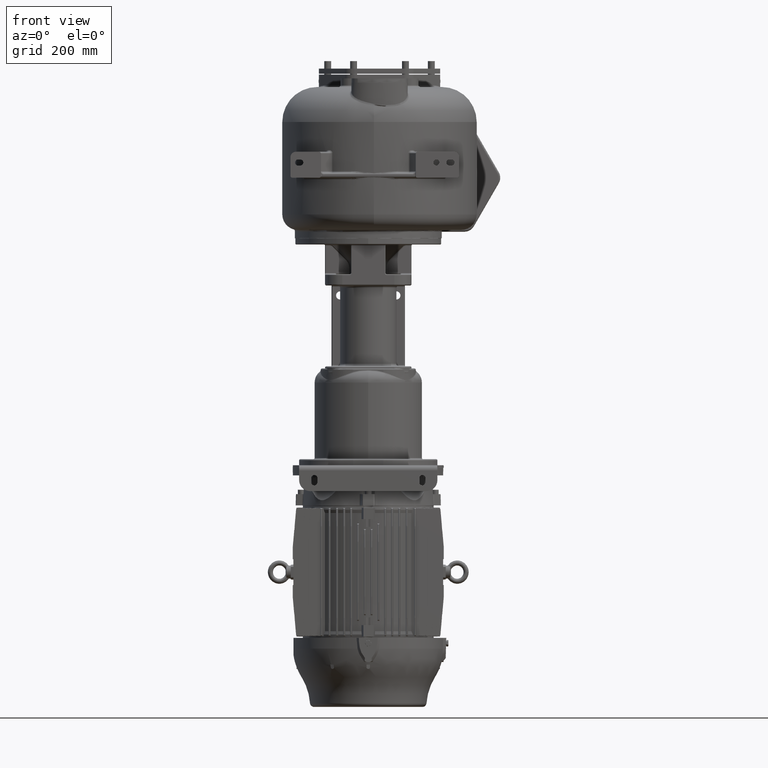
[diagram: clean part render]
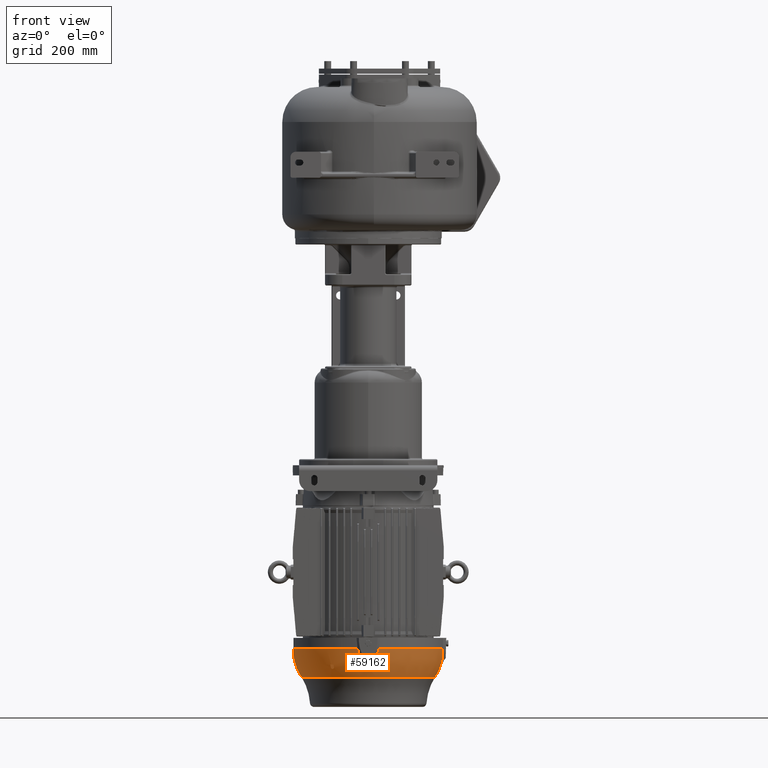
[diagram: same view with one face highlighted and labeled with its STEP entity id]
A machine part, front view. The second image highlights one B-rep face of the part: STEP entity #59162.
In plain terms, the highlighted face is a freeform B-spline surface patch.
Its self-contained STEP definition (entity closure, byte-faithful):
#639=CARTESIAN_POINT('',(-4.439127088391E1,2.29E2,-1.121696996720E3));
#640=DIRECTION('',(0.E0,-1.E0,0.E0));
#641=DIRECTION('',(-9.216813283607E-1,0.E0,-3.879478430812E-1));
#642=AXIS2_PLACEMENT_3D('',#639,#640,#641);
#644=CARTESIAN_POINT('',(-1.679057511651E2,2.25E2,-1.1621E3));
#645=CARTESIAN_POINT('',(-1.677457709875E2,2.249872163459E2,-1.162588188052E3));
#646=CARTESIAN_POINT('',(-1.674200458499E2,2.249617007045E2,-1.163562591087E3));
#647=CARTESIAN_POINT('',(-1.669141370395E2,2.249235799632E2,-1.165018363463E3));
#648=CARTESIAN_POINT('',(-1.663909946605E2,2.248856187180E2,-1.166468044931E3));
#649=CARTESIAN_POINT('',(-1.660308070439E2,2.248604220256E2,-1.167430267795E3));
#650=CARTESIAN_POINT('',(-1.658478510124E2,2.248478510122E2,-1.167910335426E3));
#652=CARTESIAN_POINT('',(-4.439127088391E1,2.29E2,-1.121696996720E3));
#653=DIRECTION('',(0.E0,-1.E0,0.E0));
#654=DIRECTION('',(-9.892979162776E-1,0.E0,-1.459096735957E-1));
#655=AXIS2_PLACEMENT_3D('',#652,#653,#654);
#657=CARTESIAN_POINT('',(-1.73E2,2.073717807847E2,-1.1251E3));
#658=CARTESIAN_POINT('',(-1.73E2,2.074014341734E2,-1.125240479658E3));
#659=CARTESIAN_POINT('',(-1.73E2,2.074644507911E2,-1.125521039787E3));
#660=CARTESIAN_POINT('',(-1.73E2,2.075701737811E2,-1.125940732342E3));
#661=CARTESIAN_POINT('',(-1.73E2,2.076871143412E2,-1.126359079975E3));
#662=CARTESIAN_POINT('',(-1.73E2,2.078153080162E2,-1.126775947135E3));
#663=CARTESIAN_POINT('',(-1.73E2,2.079547883402E2,-1.127191175894E3));
#664=CARTESIAN_POINT('',(-1.73E2,2.081055911978E2,-1.127604607972E3));
#665=CARTESIAN_POINT('',(-1.73E2,2.082677527090E2,-1.128016077397E3));
#666=CARTESIAN_POINT('',(-1.73E2,2.084413096150E2,-1.128425413146E3));
#667=CARTESIAN_POINT('',(-1.73E2,2.086262965173E2,-1.128832433728E3));
#668=CARTESIAN_POINT('',(-1.73E2,2.088227480904E2,-1.129236953807E3));
#669=CARTESIAN_POINT('',(-1.73E2,2.090306978771E2,-1.129638781896E3));
#670=CARTESIAN_POINT('',(-1.73E2,2.092501779956E2,-1.130037720484E3));
#671=CARTESIAN_POINT('',(-1.73E2,2.094812161669E2,-1.130433561765E3));
#672=CARTESIAN_POINT('',(-1.73E2,2.097238385012E2,-1.130826093730E3));
#673=CARTESIAN_POINT('',(-1.73E2,2.099780664772E2,-1.131215095709E3));
#674=CARTESIAN_POINT('',(-1.73E2,2.102439166922E2,-1.131600339173E3));
#675=CARTESIAN_POINT('',(-1.73E2,2.105213964703E2,-1.131981583089E3));
#676=CARTESIAN_POINT('',(-1.73E2,2.108105143066E2,-1.132358589289E3));
#677=CARTESIAN_POINT('',(-1.73E2,2.111112556260E2,-1.132731090553E3));
#678=CARTESIAN_POINT('',(-1.73E2,2.114235365079E2,-1.133098744819E3));
#679=CARTESIAN_POINT('',(-1.73E2,2.117472611802E2,-1.133461217010E3));
#680=CARTESIAN_POINT('',(-1.73E2,2.120823738750E2,-1.133818230960E3));
#681=CARTESIAN_POINT('',(-1.73E2,2.124288333066E2,-1.134169529929E3));
#682=CARTESIAN_POINT('',(-1.73E2,2.127865719234E2,-1.134514834104E3));
#683=CARTESIAN_POINT('',(-1.73E2,2.131555155361E2,-1.134853863333E3));
#684=CARTESIAN_POINT('',(-1.73E2,2.135355761675E2,-1.135186330612E3));
#685=CARTESIAN_POINT('',(-1.73E2,2.139266548768E2,-1.135511945946E3));
#686=CARTESIAN_POINT('',(-1.73E2,2.143286390035E2,-1.135830414787E3));
#687=CARTESIAN_POINT('',(-1.73E2,2.147414009577E2,-1.136141438312E3));
#688=CARTESIAN_POINT('',(-1.73E2,2.151647979084E2,-1.136444714384E3));
#689=CARTESIAN_POINT('',(-1.73E2,2.155986703804E2,-1.136739937785E3));
#690=CARTESIAN_POINT('',(-1.73E2,2.160428435543E2,-1.137026802240E3));
#691=CARTESIAN_POINT('',(-1.73E2,2.164971208157E2,-1.137304997545E3));
#692=CARTESIAN_POINT('',(-1.73E2,2.169612891729E2,-1.137574214583E3));
#693=CARTESIAN_POINT('',(-1.73E2,2.174351186196E2,-1.137834145797E3));
#694=CARTESIAN_POINT('',(-1.73E2,2.179183591362E2,-1.138084484682E3));
#695=CARTESIAN_POINT('',(-1.73E2,2.184107414515E2,-1.138324927504E3));
#696=CARTESIAN_POINT('',(-1.73E2,2.189119751730E2,-1.138555173639E3));
#697=CARTESIAN_POINT('',(-1.73E2,2.194217497585E2,-1.138774927415E3));
#698=CARTESIAN_POINT('',(-1.73E2,2.199397354740E2,-1.138983899648E3));
#699=CARTESIAN_POINT('',(-1.73E2,2.204655782374E2,-1.139181806875E3));
#700=CARTESIAN_POINT('',(-1.73E2,2.209989055762E2,-1.139368375147E3));
#701=CARTESIAN_POINT('',(-1.73E2,2.215393270595E2,-1.139543341019E3));
#702=CARTESIAN_POINT('',(-1.73E2,2.220864301861E2,-1.139706451315E3));
#703=CARTESIAN_POINT('',(-1.73E2,2.226397847114E2,-1.139857465746E3));
#704=CARTESIAN_POINT('',(-1.73E2,2.231989432369E2,-1.139996157928E3));
#705=CARTESIAN_POINT('',(-1.73E2,2.237634396714E2,-1.140122315994E3));
#706=CARTESIAN_POINT('',(-1.73E2,2.243327920593E2,-1.140235744258E3));
#707=CARTESIAN_POINT('',(-1.73E2,2.249064994957E2,-1.140336263592E3));
#708=CARTESIAN_POINT('',(-1.73E2,2.254840490404E2,-1.140423713760E3));
#709=CARTESIAN_POINT('',(-1.73E2,2.260649173720E2,-1.140497954031E3));
#710=CARTESIAN_POINT('',(-1.73E2,2.266485670447E2,-1.140558863557E3));
#711=CARTESIAN_POINT('',(-1.73E2,2.272344580430E2,-1.140606342540E3));
#712=CARTESIAN_POINT('',(-1.73E2,2.278220224330E2,-1.140640312608E3));
#713=CARTESIAN_POINT('',(-1.73E2,2.284107612747E2,-1.140660717357E3));
#714=CARTESIAN_POINT('',(-1.73E2,2.288035146176E2,-1.140665254287E3));
#715=CARTESIAN_POINT('',(-1.73E2,2.29E2,-1.140665254287E3));
#717=CARTESIAN_POINT('',(2.141763049983E-14,2.29E2,-1.1251E3));
#718=DIRECTION('',(0.E0,0.E0,-1.E0));
#719=DIRECTION('',(-1.421099078819E-1,-9.898508847709E-1,0.E0));
#720=AXIS2_PLACEMENT_3D('',#717,#718,#719);
#722=CARTESIAN_POINT('',(-1.077559158213E1,5.898268260660E1,-1.153825951678E3));
#723=CARTESIAN_POINT('',(-1.111243509191E1,5.887511171213E1,-1.153321511122E3));
#724=CARTESIAN_POINT('',(-1.180946756570E1,5.866228531563E1,-1.152283999980E3));
#725=CARTESIAN_POINT('',(-1.295558484317E1,5.834488783361E1,-1.150585548178E3));
#726=CARTESIAN_POINT('',(-1.408801872774E1,5.806076012856E1,-1.148896477244E3));
#727=CARTESIAN_POINT('',(-1.512295906623E1,5.782298106081E1,-1.147326278246E3));
#728=CARTESIAN_POINT('',(-1.603538747876E1,5.762855757507E1,-1.145907822280E3));
#729=CARTESIAN_POINT('',(-1.684229152588E1,5.746731780303E1,-1.144616303767E3));
#730=CARTESIAN_POINT('',(-1.756257894345E1,5.733123420913E1,-1.143425069903E3));
#731=CARTESIAN_POINT('',(-1.821242518772E1,5.721440445650E1,-1.142311468679E3));
#732=CARTESIAN_POINT('',(-1.880390156725E1,5.711271808750E1,-1.141258700715E3));
#733=CARTESIAN_POINT('',(-1.934611247043E1,5.702323209817E1,-1.140254116277E3));
#734=CARTESIAN_POINT('',(-1.984597875101E1,5.694379952036E1,-1.139288069668E3));
#735=CARTESIAN_POINT('',(-2.030874733703E1,5.687283290542E1,-1.138353265522E3));
#736=CARTESIAN_POINT('',(-2.073874482520E1,5.680909402305E1,-1.137443494883E3));
#737=CARTESIAN_POINT('',(-2.113905225870E1,5.675167789285E1,-1.136554449441E3));
#738=CARTESIAN_POINT('',(-2.151184487379E1,5.669992163516E1,-1.135683556420E3));
#739=CARTESIAN_POINT('',(-2.186269663049E1,5.665274709926E1,-1.134819228735E3));
#740=CARTESIAN_POINT('',(-2.220338483219E1,5.660857326734E1,-1.133932133175E3));
#741=CARTESIAN_POINT('',(-2.254172898352E1,5.656693648459E1,-1.133000139120E3));
#742=CARTESIAN_POINT('',(-2.287585323671E1,5.652869253345E1,-1.132024768493E3));
#743=CARTESIAN_POINT('',(-2.320619422003E1,5.649451497455E1,-1.131001475474E3));
#744=CARTESIAN_POINT('',(-2.353166591814E1,5.646536586370E1,-1.129929826390E3));
#745=CARTESIAN_POINT('',(-2.385079500805E1,5.644229717459E1,-1.128811468002E3));
#746=CARTESIAN_POINT('',(-2.416455942769E1,5.642628030852E1,-1.127639635410E3));
#747=CARTESIAN_POINT('',(-2.447414730698E1,5.641859071218E1,-1.126404939545E3));
#748=CARTESIAN_POINT('',(-2.467641855251E1,5.642007512229E1,-1.125541772861E3));
#749=CARTESIAN_POINT('',(-2.477639676361E1,5.642274185213E1,-1.1251E3));
#751=CARTESIAN_POINT('',(2.477639676361E1,5.642274185213E1,-1.1251E3));
#752=CARTESIAN_POINT('',(2.467637153205E1,5.642007386811E1,-1.125541980629E3));
#753=CARTESIAN_POINT('',(2.447400627323E1,5.641859189589E1,-1.126405522253E3));
#754=CARTESIAN_POINT('',(2.416442064316E1,5.642628431015E1,-1.127640184860E3));
#755=CARTESIAN_POINT('',(2.385042051591E1,5.644232072505E1,-1.128812820703E3));
#756=CARTESIAN_POINT('',(2.353180814512E1,5.646535996292E1,-1.129929274147E3));
#757=CARTESIAN_POINT('',(2.320739255495E1,5.649440221921E1,-1.130997599731E3));
#758=CARTESIAN_POINT('',(2.287730632676E1,5.652853268594E1,-1.132020413707E3));
#759=CARTESIAN_POINT('',(2.254277249068E1,5.656681094818E1,-1.132997205146E3));
#760=CARTESIAN_POINT('',(2.220425882908E1,5.660846312002E1,-1.133929781771E3));
#761=CARTESIAN_POINT('',(2.186417732812E1,5.665255250339E1,-1.134815440817E3));
#762=CARTESIAN_POINT('',(2.151399614689E1,5.669962801487E1,-1.135678392328E3));
#763=CARTESIAN_POINT('',(2.114101993324E1,5.675139952920E1,-1.136549987312E3));
#764=CARTESIAN_POINT('',(2.074048202750E1,5.680884063272E1,-1.137439733826E3));
#765=CARTESIAN_POINT('',(2.031060319358E1,5.687255308669E1,-1.138349431907E3));
#766=CARTESIAN_POINT('',(1.984774471001E1,5.694352362469E1,-1.139284587264E3));
#767=CARTESIAN_POINT('',(1.934786130085E1,5.702294878494E1,-1.140250811369E3));
#768=CARTESIAN_POINT('',(1.880559542411E1,5.711243257420E1,-1.141255630097E3));
#769=CARTESIAN_POINT('',(1.821405754291E1,5.721411721170E1,-1.142308623326E3));
#770=CARTESIAN_POINT('',(1.756409382687E1,5.733095452303E1,-1.143422525963E3));
#771=CARTESIAN_POINT('',(1.684368505292E1,5.746704676092E1,-1.144614040848E3));
#772=CARTESIAN_POINT('',(1.603679367986E1,5.762826758855E1,-1.145905606774E3));
#773=CARTESIAN_POINT('',(1.512440690569E1,5.782266071403E1,-1.147324058623E3));
#774=CARTESIAN_POINT('',(1.408938242326E1,5.806043167036E1,-1.148894431357E3));
#775=CARTESIAN_POINT('',(1.295665802903E1,5.834460179207E1,-1.150583957151E3));
#776=CARTESIAN_POINT('',(1.181003410956E1,5.866211570335E1,-1.152283158904E3));
#777=CARTESIAN_POINT('',(1.111263346860E1,5.887504836058E1,-1.153321214043E3));
#778=CARTESIAN_POINT('',(1.077559158213E1,5.898268260660E1,-1.153825951678E3));
#780=CARTESIAN_POINT('',(2.141763049983E-14,2.29E2,-1.1251E3));
#781=DIRECTION('',(0.E0,0.E0,-1.E0));
#782=DIRECTION('',(9.898508847709E-1,-1.421099078819E-1,0.E0));
#783=AXIS2_PLACEMENT_3D('',#780,#781,#782);
#785=CARTESIAN_POINT('',(1.700173173934E2,2.182244084179E2,-1.153825951678E3));
#786=CARTESIAN_POINT('',(1.701248882879E2,2.178875649081E2,-1.153321511122E3));
#787=CARTESIAN_POINT('',(1.703377146844E2,2.171905324343E2,-1.152283999980E3));
#788=CARTESIAN_POINT('',(1.706551121664E2,2.160444151568E2,-1.150585548178E3));
#789=CARTESIAN_POINT('',(1.709392398714E2,2.149119812723E2,-1.148896477244E3));
#790=CARTESIAN_POINT('',(1.711770189392E2,2.138770409338E2,-1.147326278246E3));
#791=CARTESIAN_POINT('',(1.713714424249E2,2.129646125212E2,-1.145907822280E3));
#792=CARTESIAN_POINT('',(1.715326821970E2,2.121577084741E2,-1.144616303767E3));
#793=CARTESIAN_POINT('',(1.716687657909E2,2.114374210566E2,-1.143425069903E3));
#794=CARTESIAN_POINT('',(1.717855955435E2,2.107875748123E2,-1.142311468679E3));
#795=CARTESIAN_POINT('',(1.718872819125E2,2.101960984328E2,-1.141258700715E3));
#796=CARTESIAN_POINT('',(1.719767679018E2,2.096538875296E2,-1.140254116277E3));
#797=CARTESIAN_POINT('',(1.720562004796E2,2.091540212490E2,-1.139288069668E3));
#798=CARTESIAN_POINT('',(1.721271670946E2,2.086912526630E2,-1.138353265522E3));
#799=CARTESIAN_POINT('',(1.721909059769E2,2.082612551748E2,-1.137443494883E3));
#800=CARTESIAN_POINT('',(1.722483221072E2,2.078609477413E2,-1.136554449441E3));
#801=CARTESIAN_POINT('',(1.723000783648E2,2.074881551262E2,-1.135683556420E3));
#802=CARTESIAN_POINT('',(1.723472529007E2,2.071373033695E2,-1.134819228735E3));
#803=CARTESIAN_POINT('',(1.723914267327E2,2.067966151678E2,-1.133932133175E3));
#804=CARTESIAN_POINT('',(1.724330635154E2,2.064582710165E2,-1.133000139120E3));
#805=CARTESIAN_POINT('',(1.724713074666E2,2.061241467633E2,-1.132024768493E3));
#806=CARTESIAN_POINT('',(1.725054850255E2,2.057938057800E2,-1.131001475474E3));
#807=CARTESIAN_POINT('',(1.725346341363E2,2.054683340819E2,-1.129929826390E3));
#808=CARTESIAN_POINT('',(1.725577028254E2,2.051492049919E2,-1.128811468002E3));
#809=CARTESIAN_POINT('',(1.725737196915E2,2.048354405723E2,-1.127639635410E3));
#810=CARTESIAN_POINT('',(1.725814092878E2,2.045258526930E2,-1.126404939545E3));
#811=CARTESIAN_POINT('',(1.725799248777E2,2.043235814475E2,-1.125541772861E3));
#812=CARTESIAN_POINT('',(1.725772581479E2,2.042236032364E2,-1.1251E3));
#814=CARTESIAN_POINT('',(1.658478510123E2,2.248478510122E2,-1.167910335426E3));
#815=CARTESIAN_POINT('',(1.660308070437E2,2.248604220256E2,-1.167430267796E3));
#816=CARTESIAN_POINT('',(1.663909946606E2,2.248856187180E2,-1.166468044931E3));
#817=CARTESIAN_POINT('',(1.669141370395E2,2.249235799632E2,-1.165018363463E3));
#818=CARTESIAN_POINT('',(1.674200458499E2,2.249617007045E2,-1.163562591087E3));
#819=CARTESIAN_POINT('',(1.677457709875E2,2.249872163459E2,-1.162588188052E3));
#820=CARTESIAN_POINT('',(1.679057511651E2,2.25E2,-1.1621E3));
#822=CARTESIAN_POINT('',(-8.048877396744E1,8.158935404947E1,-1.1621E3));
#823=CARTESIAN_POINT('',(-8.039771290946E1,8.172150912038E1,-1.162588188052E3));
#824=CARTESIAN_POINT('',(-8.021275314698E1,8.199083754348E1,-1.163562591087E3));
#825=CARTESIAN_POINT('',(-7.992678521143E1,8.240990705465E1,-1.165018363463E3));
#826=CARTESIAN_POINT('',(-7.963233861927E1,8.284398102196E1,-1.166468044931E3));
#827=CARTESIAN_POINT('',(-7.943042383501E1,8.314331430214E1,-1.167430267796E3));
#828=CARTESIAN_POINT('',(-7.932805900240E1,8.329547336649E1,-1.167910335427E3));
#830=CARTESIAN_POINT('',(-8.651979200981E1,8.744762235423E1,-1.167910335427E3));
#831=CARTESIAN_POINT('',(-8.660038320865E1,8.728289227655E1,-1.167430267796E3));
#832=CARTESIAN_POINT('',(-8.675865604135E1,8.695836230395E1,-1.166468044931E3));
#833=CARTESIAN_POINT('',(-8.698735182808E1,8.648632709140E1,-1.165018363463E3));
#834=CARTESIAN_POINT('',(-8.720729270292E1,8.602913683897E1,-1.163562591087E3));
#835=CARTESIAN_POINT('',(-8.734805807806E1,8.573429277443E1,-1.162588188052E3));
#836=CARTESIAN_POINT('',(-8.741697719771E1,8.558935404947E1,-1.1621E3));
#838=CARTESIAN_POINT('',(3.999999999999E0,6.109424883485E1,-1.1621E3));
#839=CARTESIAN_POINT('',(4.012783654052E0,6.125422901249E1,-1.162588188052E3));
#840=CARTESIAN_POINT('',(4.038299295480E0,6.157995415010E1,-1.163562591087E3));
#841=CARTESIAN_POINT('',(4.076420036751E0,6.208586296046E1,-1.165018363463E3));
#842=CARTESIAN_POINT('',(4.114381281975E0,6.260900533948E1,-1.166468044931E3));
#843=CARTESIAN_POINT('',(4.139577974428E0,6.296919295614E1,-1.167430267795E3));
#844=CARTESIAN_POINT('',(4.152148987754E0,6.315214898759E1,-1.167910335426E3));
#846=CARTESIAN_POINT('',(-4.152148987759E0,6.315214898760E1,-1.167910335426E3));
#847=CARTESIAN_POINT('',(-4.139577974432E0,6.296919295615E1,-1.167430267795E3));
#848=CARTESIAN_POINT('',(-4.114381281975E0,6.260900533947E1,-1.166468044931E3));
#849=CARTESIAN_POINT('',(-4.076420036752E0,6.208586296046E1,-1.165018363463E3));
#850=CARTESIAN_POINT('',(-4.038299295481E0,6.157995415010E1,-1.163562591087E3));
#851=CARTESIAN_POINT('',(-4.012783654053E0,6.125422901249E1,-1.162588188052E3));
#852=CARTESIAN_POINT('',(-4.000000000001E0,6.109424883485E1,-1.1621E3));
#854=CARTESIAN_POINT('',(4.439127088391E1,2.29E2,-1.121696996720E3));
#855=DIRECTION('',(0.E0,1.E0,0.E0));
#856=DIRECTION('',(9.216782879727E-1,0.E0,-3.879550663154E-1));
#857=AXIS2_PLACEMENT_3D('',#854,#855,#856);
#867=CARTESIAN_POINT('',(4.439127088391E1,2.29E2,-1.121696996720E3));
#868=DIRECTION('',(0.E0,1.E0,0.E0));
#869=DIRECTION('',(9.643476921320E-1,0.E0,-2.646384867694E-1));
#870=AXIS2_PLACEMENT_3D('',#867,#868,#869);
#969=CARTESIAN_POINT('',(-1.73E2,2.29E2,-1.140665254287E3));
#1171=CARTESIAN_POINT('',(0.E0,2.29E2,-1.190764132327E3));
#1172=DIRECTION('',(0.E0,0.E0,-1.E0));
#1173=DIRECTION('',(1.E0,0.E0,0.E0));
#1174=AXIS2_PLACEMENT_3D('',#1171,#1172,#1173);
#8057=CARTESIAN_POINT('',(1.642094483203E2,2.289999999987E2,-1.172131155341E3));
#8105=CARTESIAN_POINT('',(1.658478510123E2,2.248478510122E2,-1.167910335426E3));
#8106=CARTESIAN_POINT('',(1.658281053580E2,2.248464816980E2,-1.167962146225E3));
#8107=CARTESIAN_POINT('',(1.657885699724E2,2.248457201266E2,-1.168065814134E3));
#8108=CARTESIAN_POINT('',(1.657292001130E2,2.248505127147E2,-1.168221282622E3));
#8109=CARTESIAN_POINT('',(1.656698681992E2,2.248612335800E2,-1.168376443717E3));
#8110=CARTESIAN_POINT('',(1.656106686649E2,2.248778623028E2,-1.168531051759E3));
#8111=CARTESIAN_POINT('',(1.655516992767E2,2.249003653971E2,-1.168684853691E3));
#8112=CARTESIAN_POINT('',(1.654930556953E2,2.249286967270E2,-1.168837603288E3));
#8113=CARTESIAN_POINT('',(1.654348330052E2,2.249627977815E2,-1.168989057108E3));
#8114=CARTESIAN_POINT('',(1.653771324955E2,2.250025930801E2,-1.169138956830E3));
#8115=CARTESIAN_POINT('',(1.653200741810E2,2.250479747290E2,-1.169286996905E3));
#8116=CARTESIAN_POINT('',(1.652637621706E2,2.250988239976E2,-1.169432914515E3));
#8117=CARTESIAN_POINT('',(1.652082803646E2,2.251550247510E2,-1.169576500344E3));
#8118=CARTESIAN_POINT('',(1.651537093499E2,2.252164535221E2,-1.169717554564E3));
#8119=CARTESIAN_POINT('',(1.651001288353E2,2.252829765869E2,-1.169855880471E3));
#8120=CARTESIAN_POINT('',(1.650476138542E2,2.253544547289E2,-1.169991294206E3));
#8121=CARTESIAN_POINT('',(1.649962364272E2,2.254307422671E2,-1.170123620356E3));
#8122=CARTESIAN_POINT('',(1.649460658247E2,2.255116869452E2,-1.170252691187E3));
#8123=CARTESIAN_POINT('',(1.648971675266E2,2.255971320067E2,-1.170378349225E3));
#8124=CARTESIAN_POINT('',(1.648496028424E2,2.256869178644E2,-1.170500448129E3));
#8125=CARTESIAN_POINT('',(1.648034297612E2,2.257808814818E2,-1.170618850410E3));
#8126=CARTESIAN_POINT('',(1.647587027596E2,2.258788573663E2,-1.170733427828E3));
#8127=CARTESIAN_POINT('',(1.647154728606E2,2.259806782174E2,-1.170844061155E3));
#8128=CARTESIAN_POINT('',(1.646737877564E2,2.260861753624E2,-1.170950639769E3));
#8129=CARTESIAN_POINT('',(1.646336919850E2,2.261951790708E2,-1.171053061131E3));
#8130=CARTESIAN_POINT('',(1.645952276179E2,2.263075170076E2,-1.171151228946E3));
#8131=CARTESIAN_POINT('',(1.645584326159E2,2.264230195829E2,-1.171245057294E3));
#8132=CARTESIAN_POINT('',(1.645233422635E2,2.265415169374E2,-1.171334466892E3));
#8133=CARTESIAN_POINT('',(1.644899889298E2,2.266628402225E2,-1.171419385651E3));
#8134=CARTESIAN_POINT('',(1.644584023216E2,2.267868215515E2,-1.171499747966E3));
#8135=CARTESIAN_POINT('',(1.644286095992E2,2.269132942098E2,-1.171575494372E3));
#8136=CARTESIAN_POINT('',(1.644006355224E2,2.270420928736E2,-1.171646571125E3));
#8137=CARTESIAN_POINT('',(1.643745031317E2,2.271730506874E2,-1.171712928430E3));
#8138=CARTESIAN_POINT('',(1.643502326079E2,2.273060052150E2,-1.171774523298E3));
#8139=CARTESIAN_POINT('',(1.643278421973E2,2.274407951481E2,-1.171831317157E3));
#8140=CARTESIAN_POINT('',(1.643073481319E2,2.275772612926E2,-1.171883276030E3));
#8141=CARTESIAN_POINT('',(1.642887648667E2,2.277152459842E2,-1.171930369900E3));
#8142=CARTESIAN_POINT('',(1.642721052018E2,2.278545927176E2,-1.171972572379E3));
#8143=CARTESIAN_POINT('',(1.642573802671E2,2.279951471763E2,-1.172009860726E3));
#8144=CARTESIAN_POINT('',(1.642445999796E2,2.281367530843E2,-1.172042214669E3));
#8145=CARTESIAN_POINT('',(1.642337724728E2,2.282792580010E2,-1.172069617838E3));
#8146=CARTESIAN_POINT('',(1.642249045211E2,2.284225107688E2,-1.172092056674E3));
#8147=CARTESIAN_POINT('',(1.642180016046E2,2.285663607229E2,-1.172109520254E3));
#8148=CARTESIAN_POINT('',(1.642130679484E2,2.287106588028E2,-1.172122000187E3));
#8149=CARTESIAN_POINT('',(1.642101065495E2,2.288552528662E2,-1.172129490537E3));
#8150=CARTESIAN_POINT('',(1.642094483203E2,2.289517543278E2,-1.172131155341E3));
#8151=CARTESIAN_POINT('',(1.642094483203E2,2.289999999987E2,-1.172131155341E3));
#8166=CARTESIAN_POINT('',(1.321510415975E-14,2.29E2,-1.1621E3));
#8167=DIRECTION('',(0.E0,0.E0,-1.E0));
#8168=DIRECTION('',(1.E0,-6.650494993822E-14,0.E0));
#8169=AXIS2_PLACEMENT_3D('',#8166,#8167,#8168);
#8193=CARTESIAN_POINT('',(1.454524356625E-14,2.29E2,-1.1561E3));
#8194=DIRECTION('',(0.E0,0.E0,1.E0));
#8195=DIRECTION('',(9.993989367305E-1,-3.466648614828E-2,0.E0));
#8196=AXIS2_PLACEMENT_3D('',#8193,#8194,#8195);
#8229=CARTESIAN_POINT('',(1.725772581479E2,2.042236032364E2,-1.1251E3));
#8412=CARTESIAN_POINT('',(1.454524356625E-14,2.29E2,-1.1561E3));
#8413=DIRECTION('',(0.E0,0.E0,1.E0));
#8414=DIRECTION('',(-3.466648614827E-2,-9.993989367305E-1,0.E0));
#8415=AXIS2_PLACEMENT_3D('',#8412,#8413,#8414);
#8417=CARTESIAN_POINT('',(-1.077559158213E1,5.898268260660E1,
-1.153825951678E3));
#8418=CARTESIAN_POINT('',(-1.074759567654E1,5.899162318908E1,
-1.153867877371E3));
#8419=CARTESIAN_POINT('',(-1.068988019244E1,5.900928376632E1,
-1.153951065864E3));
#8420=CARTESIAN_POINT('',(-1.059803432562E1,5.903511199360E1,
-1.154073878569E3));
#8421=CARTESIAN_POINT('',(-1.050097653080E1,5.906023072681E1,
-1.154194514228E3));
#8422=CARTESIAN_POINT('',(-1.039872806038E1,5.908460473840E1,
-1.154312824079E3));
#8423=CARTESIAN_POINT('',(-1.029133982571E1,5.910819248839E1,
-1.154428627570E3));
#8424=CARTESIAN_POINT('',(-1.017884875579E1,5.913095703341E1,
-1.154541766007E3));
#8425=CARTESIAN_POINT('',(-1.006131606436E1,5.915285655886E1,
-1.154652056565E3));
#8426=CARTESIAN_POINT('',(-9.938879048624E0,5.917383994431E1,
-1.154759265477E3));
#8427=CARTESIAN_POINT('',(-9.811255946214E0,5.919392468454E1,
-1.154863512967E3));
#8428=CARTESIAN_POINT('',(-9.677971390201E0,5.921314753528E1,
-1.154965024523E3));
#8429=CARTESIAN_POINT('',(-9.539234053837E0,5.923143520042E1,
-1.155063455950E3));
#8430=CARTESIAN_POINT('',(-9.395277481022E0,5.924872344204E1,
-1.155158497176E3));
#8431=CARTESIAN_POINT('',(-9.246044262941E0,5.926498643192E1,
-1.155250044551E3));
#8432=CARTESIAN_POINT('',(-9.091391417281E0,5.928020027480E1,
-1.155338015636E3));
#8433=CARTESIAN_POINT('',(-8.931373208194E0,5.929431654265E1,
-1.155422193858E3));
#8434=CARTESIAN_POINT('',(-8.766118072757E0,5.930728236888E1,
-1.155502332474E3));
#8435=CARTESIAN_POINT('',(-8.595363491337E0,5.931907536055E1,
-1.155578372020E3));
#8436=CARTESIAN_POINT('',(-8.418752365837E0,5.932967809035E1,
-1.155650280824E3));
#8437=CARTESIAN_POINT('',(-8.236379167172E0,5.933903559276E1,
-1.155717799029E3));
#8438=CARTESIAN_POINT('',(-8.048487392866E0,5.934708998092E1,
-1.155780630475E3));
#8439=CARTESIAN_POINT('',(-7.855205512579E0,5.935379219699E1,
-1.155838533162E3));
#8440=CARTESIAN_POINT('',(-7.656767873663E0,5.935909069309E1,
-1.155891237575E3));
#8441=CARTESIAN_POINT('',(-7.453576949093E0,5.936293732793E1,
-1.155938462200E3));
#8442=CARTESIAN_POINT('',(-7.245216529024E0,5.936529812070E1,
-1.155980110126E3));
#8443=CARTESIAN_POINT('',(-7.031094624579E0,5.936613445721E1,
-1.156016080543E3));
#8444=CARTESIAN_POINT('',(-6.811473199738E0,5.936539459318E1,
-1.156046084087E3));
#8445=CARTESIAN_POINT('',(-6.586746487506E0,5.936303365587E1,
-1.156069839604E3));
#8446=CARTESIAN_POINT('',(-6.357228412669E0,5.935901174967E1,
-1.156087098071E3));
#8447=CARTESIAN_POINT('',(-6.123295092912E0,5.935329353071E1,
-1.156097619545E3));
#8448=CARTESIAN_POINT('',(-5.964786683106E0,5.934833595435E1,
-1.156100000016E3));
#8449=CARTESIAN_POINT('',(-5.884860345685E0,5.934556351831E1,-1.1561E3));
#8459=CARTESIAN_POINT('',(-1.077559158213E1,5.898268260660E1,
-1.153825951678E3));
#8497=CARTESIAN_POINT('',(-5.884860345685E0,5.934556351831E1,-1.1561E3));
#8551=CARTESIAN_POINT('',(5.884860345689E0,5.934556351831E1,-1.1561E3));
#8552=CARTESIAN_POINT('',(5.964789514116E0,5.934833605255E1,-1.156100000016E3));
#8553=CARTESIAN_POINT('',(6.123303404218E0,5.935329378199E1,-1.156097619382E3));
#8554=CARTESIAN_POINT('',(6.357244825857E0,5.935901211036E1,-1.156087097156E3));
#8555=CARTESIAN_POINT('',(6.586769606420E0,5.936303400211E1,-1.156069837609E3));
#8556=CARTESIAN_POINT('',(6.811505526142E0,5.936539483183E1,-1.156046080232E3));
#8557=CARTESIAN_POINT('',(7.031129544004E0,5.936613446374E1,-1.156016075293E3));
#8558=CARTESIAN_POINT('',(7.245263882131E0,5.936529780712E1,-1.155980101617E3));
#8559=CARTESIAN_POINT('',(7.453643330077E0,5.936293637538E1,-1.155938448073E3));
#8560=CARTESIAN_POINT('',(7.656847263618E0,5.935908889971E1,-1.155891217882E3));
#8561=CARTESIAN_POINT('',(7.855284700845E0,5.935378977791E1,-1.155838510831E3));
#8562=CARTESIAN_POINT('',(8.048572924693E0,5.934708669320E1,-1.155780603483E3));
#8563=CARTESIAN_POINT('',(8.236469592179E0,5.933903135072E1,-1.155717767238E3));
#8564=CARTESIAN_POINT('',(8.418844742137E0,5.932967297025E1,-1.155650245013E3));
#8565=CARTESIAN_POINT('',(8.595463632861E0,5.931906894096E1,-1.155578329522E3));
#8566=CARTESIAN_POINT('',(8.766216176610E0,5.930727505877E1,-1.155502286531E3));
#8567=CARTESIAN_POINT('',(8.931447932427E0,5.929431040243E1,-1.155422156452E3));
#8568=CARTESIAN_POINT('',(9.091579256253E0,5.928018345112E1,-1.155337915756E3));
#8569=CARTESIAN_POINT('',(9.246518735927E0,5.926493863489E1,-1.155249769936E3));
#8570=CARTESIAN_POINT('',(9.396154735942E0,5.924862449214E1,-1.155157944931E3));
#8571=CARTESIAN_POINT('',(9.540377895986E0,5.923129188446E1,-1.155062675768E3));
#8572=CARTESIAN_POINT('',(9.679141964835E0,5.921298594876E1,-1.154964163402E3));
#8573=CARTESIAN_POINT('',(9.812342202300E0,5.919376080056E1,-1.154862655335E3));
#8574=CARTESIAN_POINT('',(9.939935585434E0,5.917366654652E1,-1.154758372553E3));
#8575=CARTESIAN_POINT('',(1.006236491153E1,5.915266892656E1,-1.154651105086E3));
#8576=CARTESIAN_POINT('',(1.017974472854E1,5.913078194538E1,-1.154540891039E3));
#8577=CARTESIAN_POINT('',(1.029194371877E1,5.910806334410E1,-1.154427991063E3));
#8578=CARTESIAN_POINT('',(1.039899274070E1,5.908454233999E1,-1.154312520748E3));
#8579=CARTESIAN_POINT('',(1.050101008719E1,5.906022136363E1,-1.154194469667E3));
#8580=CARTESIAN_POINT('',(1.059800089129E1,5.903512108665E1,-1.154073921976E3));
#8581=CARTESIAN_POINT('',(1.068988969504E1,5.900928121295E1,-1.153951053657E3));
#8582=CARTESIAN_POINT('',(1.074759835265E1,5.899162233446E1,-1.153867873363E3));
#8583=CARTESIAN_POINT('',(1.077559158213E1,5.898268260660E1,-1.153825951678E3));
#8591=CARTESIAN_POINT('',(5.884860345689E0,5.934556351831E1,-1.1561E3));
#10634=CARTESIAN_POINT('',(1.700173173934E2,2.182244084179E2,
-1.153825951678E3));
#10635=CARTESIAN_POINT('',(1.700083768109E2,2.182524043235E2,
-1.153867877371E3));
#10636=CARTESIAN_POINT('',(1.699907162337E2,2.183101198076E2,
-1.153951065864E3));
#10637=CARTESIAN_POINT('',(1.699648880064E2,2.184019656744E2,
-1.154073878569E3));
#10638=CARTESIAN_POINT('',(1.699397692732E2,2.184990234692E2,
-1.154194514228E3));
#10639=CARTESIAN_POINT('',(1.699153952616E2,2.186012719396E2,
-1.154312824079E3));
#10640=CARTESIAN_POINT('',(1.698918075116E2,2.187086601743E2,
-1.154428627570E3));
#10641=CARTESIAN_POINT('',(1.698690429666E2,2.188211512442E2,
-1.154541766007E3));
#10642=CARTESIAN_POINT('',(1.698471434411E2,2.189386839356E2,
-1.154652056565E3));
#10643=CARTESIAN_POINT('',(1.698261600557E2,2.190611209514E2,
-1.154759265477E3));
#10644=CARTESIAN_POINT('',(1.698060753155E2,2.191887440538E2,
-1.154863512967E3));
#10645=CARTESIAN_POINT('',(1.697868524647E2,2.193220286098E2,
-1.154965024523E3));
#10646=CARTESIAN_POINT('',(1.697685647996E2,2.194607659462E2,
-1.155063455950E3));
#10647=CARTESIAN_POINT('',(1.697512765580E2,2.196047225190E2,
-1.155158497176E3));
#10648=CARTESIAN_POINT('',(1.697350135681E2,2.197539557371E2,
-1.155250044551E3));
#10649=CARTESIAN_POINT('',(1.697197997252E2,2.199086085827E2,
-1.155338015636E3));
#10650=CARTESIAN_POINT('',(1.697056834573E2,2.200686267918E2,
-1.155422193858E3));
#10651=CARTESIAN_POINT('',(1.696927176311E2,2.202338819272E2,
-1.155502332474E3));
#10652=CARTESIAN_POINT('',(1.696809246394E2,2.204046365087E2,
-1.155578372020E3));
#10653=CARTESIAN_POINT('',(1.696703219096E2,2.205812476342E2,
-1.155650280824E3));
#10654=CARTESIAN_POINT('',(1.696609644072E2,2.207636208328E2,
-1.155717799029E3));
#10655=CARTESIAN_POINT('',(1.696529100191E2,2.209515126071E2,
-1.155780630475E3));
#10656=CARTESIAN_POINT('',(1.696462078030E2,2.211447944874E2,
-1.155838533162E3));
#10657=CARTESIAN_POINT('',(1.696409093069E2,2.213432321263E2,
-1.155891237575E3));
#10658=CARTESIAN_POINT('',(1.696370626721E2,2.215464230509E2,
-1.155938462200E3));
#10659=CARTESIAN_POINT('',(1.696347018793E2,2.217547834710E2,
-1.155980110126E3));
#10660=CARTESIAN_POINT('',(1.696338655428E2,2.219689053754E2,
-1.156016080543E3));
#10661=CARTESIAN_POINT('',(1.696346054068E2,2.221885268003E2,
-1.156046084087E3));
#10662=CARTESIAN_POINT('',(1.696369663441E2,2.224132535125E2,
-1.156069839604E3));
#10663=CARTESIAN_POINT('',(1.696409882503E2,2.226427715873E2,
-1.156087098071E3));
#10664=CARTESIAN_POINT('',(1.696467064693E2,2.228767049071E2,
-1.156097619545E3));
#10665=CARTESIAN_POINT('',(1.696516640457E2,2.230352133169E2,
-1.156100000016E3));
#10666=CARTESIAN_POINT('',(1.696544364817E2,2.231151396543E2,-1.1561E3));
#10676=CARTESIAN_POINT('',(1.700173173934E2,2.182244084179E2,
-1.153825951678E3));
#10731=CARTESIAN_POINT('',(1.321510415975E-14,2.29E2,-1.1621E3));
#10732=DIRECTION('',(0.E0,0.E0,-1.E0));
#10733=DIRECTION('',(-9.997163557169E-1,-2.381613134224E-2,0.E0));
#10734=AXIS2_PLACEMENT_3D('',#10731,#10732,#10733);
#10762=CARTESIAN_POINT('',(-1.642098435708E2,2.290000000013E2,
-1.172130216321E3));
#10763=CARTESIAN_POINT('',(-1.642098435708E2,2.289517609264E2,
-1.172130216321E3));
#10764=CARTESIAN_POINT('',(-1.642105016089E2,2.288552727762E2,
-1.172128551962E3));
#10765=CARTESIAN_POINT('',(-1.642134621346E2,2.287106989477E2,
-1.172121063650E3));
#10766=CARTESIAN_POINT('',(-1.642183943203E2,2.285664212595E2,
-1.172108587153E3));
#10767=CARTESIAN_POINT('',(-1.642252951682E2,2.284225916142E2,
-1.172091128409E3));
#10768=CARTESIAN_POINT('',(-1.642341604751E2,2.282793586533E2,
-1.172068695758E3));
#10769=CARTESIAN_POINT('',(-1.642449847958E2,2.281368727545E2,
-1.172041300033E3));
#10770=CARTESIAN_POINT('',(-1.642577613580E2,2.279952852435E2,
-1.172008954791E3));
#10771=CARTESIAN_POINT('',(-1.642724820364E2,2.278547485827E2,
-1.171971676385E3));
#10772=CARTESIAN_POINT('',(-1.642891368633E2,2.277154194851E2,
-1.171929485218E3));
#10773=CARTESIAN_POINT('',(-1.643077147086E2,2.275774521317E2,
-1.171882404035E3));
#10774=CARTESIAN_POINT('',(-1.643282028018E2,2.274410027498E2,
-1.171830459153E3));
#10775=CARTESIAN_POINT('',(-1.643505867214E2,2.273062287813E2,
-1.171773680508E3));
#10776=CARTESIAN_POINT('',(-1.643748502420E2,2.271732894119E2,
-1.171712102067E3));
#10777=CARTESIAN_POINT('',(-1.644009750988E2,2.270423460225E2,
-1.171645762451E3));
#10778=CARTESIAN_POINT('',(-1.644289412188E2,2.269135605430E2,
-1.171574704382E3));
#10779=CARTESIAN_POINT('',(-1.644587255020E2,2.267871001522E2,
-1.171498977812E3));
#10780=CARTESIAN_POINT('',(-1.644903031792E2,2.266631301838E2,
-1.171418636514E3));
#10781=CARTESIAN_POINT('',(-1.645236470825E2,2.265418173451E2,
-1.171333739978E3));
#10782=CARTESIAN_POINT('',(-1.645587275142E2,2.264233294462E2,
-1.171244353795E3));
#10783=CARTESIAN_POINT('',(-1.645955121460E2,2.263078351649E2,
-1.171150549956E3));
#10784=CARTESIAN_POINT('',(-1.646339657401E2,2.261955042056E2,
-1.171052407633E3));
#10785=CARTESIAN_POINT('',(-1.646740503607E2,2.260865060853E2,
-1.170950012687E3));
#10786=CARTESIAN_POINT('',(-1.647157239813E2,2.259810130254E2,
-1.170843461306E3));
#10787=CARTESIAN_POINT('',(-1.647589420794E2,2.258791947249E2,-1.170732856E3));
#10788=CARTESIAN_POINT('',(-1.648036570795E2,2.257812196124E2,
-1.170618307095E3));
#10789=CARTESIAN_POINT('',(-1.648498179010E2,2.256872551460E2,
-1.170499933976E3));
#10790=CARTESIAN_POINT('',(-1.648973701147E2,2.255974667280E2,
-1.170377864767E3));
#10791=CARTESIAN_POINT('',(-1.649462557726E2,2.255120173324E2,
-1.170252236860E3));
#10792=CARTESIAN_POINT('',(-1.649964136086E2,2.254310665039E2,
-1.170123196491E3));
#10793=CARTESIAN_POINT('',(-1.650477778764E2,2.253547713812E2,
-1.169990901826E3));
#10794=CARTESIAN_POINT('',(-1.651002797179E2,2.252832835820E2,
-1.169855519545E3));
#10795=CARTESIAN_POINT('',(-1.651538471078E2,2.252167488554E2,
-1.169717225079E3));
#10796=CARTESIAN_POINT('',(-1.652084050530E2,2.251553063987E2,
-1.169576202188E3));
#10797=CARTESIAN_POINT('',(-1.652638738810E2,2.250990899374E2,
-1.169432647487E3));
#10798=CARTESIAN_POINT('',(-1.653201730264E2,2.250482229402E2,
-1.169286760753E3));
#10799=CARTESIAN_POINT('',(-1.653772188852E2,2.250028213522E2,
-1.169138750537E3));
#10800=CARTESIAN_POINT('',(-1.654349071763E2,2.249630041390E2,
-1.168988880105E3));
#10801=CARTESIAN_POINT('',(-1.654931178611E2,2.249288792494E2,
-1.168837455075E3));
#10802=CARTESIAN_POINT('',(-1.655517498788E2,2.249005220919E2,
-1.168684733172E3));
#10803=CARTESIAN_POINT('',(-1.656107081644E2,2.248779912606E2,
-1.168530957790E3));
#10804=CARTESIAN_POINT('',(-1.656698970075E2,2.248613329744E2,
-1.168376375283E3));
#10805=CARTESIAN_POINT('',(-1.657292187559E2,2.248505807554E2,
-1.168221238410E3));
#10806=CARTESIAN_POINT('',(-1.657885789716E2,2.248457551007E2,
-1.168065792837E3));
#10807=CARTESIAN_POINT('',(-1.658281082932E2,2.248464935327E2,
-1.167962139288E3));
#10808=CARTESIAN_POINT('',(-1.658478510124E2,2.248478510122E2,
-1.167910335426E3));
#11010=CARTESIAN_POINT('',(-7.932805900240E1,8.329547336649E1,
-1.167910335427E3));
#11011=CARTESIAN_POINT('',(-7.931700033559E1,8.331188891613E1,
-1.167962146125E3));
#11012=CARTESIAN_POINT('',(-7.929657314290E1,8.334574670703E1,
-1.168065813819E3));
#11013=CARTESIAN_POINT('',(-7.927103877114E1,8.339955864169E1,
-1.168221281860E3));
#11014=CARTESIAN_POINT('',(-7.925065737411E1,8.345630187296E1,
-1.168376442602E3));
#11015=CARTESIAN_POINT('',(-7.923545851716E1,8.351588425289E1,
-1.168531049989E3));
#11016=CARTESIAN_POINT('',(-7.922546200819E1,8.357820476810E1,
-1.168684851965E3));
#11017=CARTESIAN_POINT('',(-7.922067583597E1,8.364315701320E1,
-1.168837601041E3));
#11018=CARTESIAN_POINT('',(-7.922109676287E1,8.371062872654E1,
-1.168989052430E3));
#11019=CARTESIAN_POINT('',(-7.922671022915E1,8.378050207471E1,
-1.169138964774E3));
#11020=CARTESIAN_POINT('',(-7.923749048302E1,8.385265487504E1,
-1.169287102683E3));
#11021=CARTESIAN_POINT('',(-7.925340074811E1,8.392695823342E1,
-1.169433231126E3));
#11022=CARTESIAN_POINT('',(-7.927438478014E1,8.400325230594E1,
-1.169577072052E3));
#11023=CARTESIAN_POINT('',(-7.930036848510E1,8.408137323114E1,
-1.169718362795E3));
#11024=CARTESIAN_POINT('',(-7.933127141797E1,8.416117743699E1,
-1.169856895387E3));
#11025=CARTESIAN_POINT('',(-7.936701033837E1,8.424253386830E1,
-1.169992494225E3));
#11026=CARTESIAN_POINT('',(-7.940749204609E1,8.432530343116E1,
-1.170124979253E3));
#11027=CARTESIAN_POINT('',(-7.945261705076E1,8.440934876283E1,
-1.170254182986E3));
#11028=CARTESIAN_POINT('',(-7.950228031414E1,8.449453389815E1,
-1.170379948694E3));
#11029=CARTESIAN_POINT('',(-7.955637187958E1,8.458072450623E1,
-1.170502130011E3));
#11030=CARTESIAN_POINT('',(-7.961477729980E1,8.466778780139E1,
-1.170620590094E3));
#11031=CARTESIAN_POINT('',(-7.967737829743E1,8.475559294052E1,
-1.170735201559E3));
#11032=CARTESIAN_POINT('',(-7.974405325346E1,8.484401117203E1,
-1.170845846101E3));
#11033=CARTESIAN_POINT('',(-7.981467811801E1,8.493291650552E1,
-1.170952414717E3));
#11034=CARTESIAN_POINT('',(-7.988912552557E1,8.502218418192E1,
-1.171054805377E3));
#11035=CARTESIAN_POINT('',(-7.996726613538E1,8.511169213631E1,
-1.171152924469E3));
#11036=CARTESIAN_POINT('',(-8.004897039132E1,8.520132249281E1,
-1.171246687786E3));
#11037=CARTESIAN_POINT('',(-8.013410750886E1,8.529095992459E1,
-1.171336018121E3));
#11038=CARTESIAN_POINT('',(-8.022254619039E1,8.538049215189E1,
-1.171420845396E3));
#11039=CARTESIAN_POINT('',(-8.031415481157E1,8.546980981784E1,
-1.171501106091E3));
#11040=CARTESIAN_POINT('',(-8.040880173878E1,8.555880654355E1,
-1.171576742913E3));
#11041=CARTESIAN_POINT('',(-8.050635539460E1,8.564737872051E1,
-1.171647704207E3));
#11042=CARTESIAN_POINT('',(-8.060668239872E1,8.573542375685E1,
-1.171713942418E3));
#11043=CARTESIAN_POINT('',(-8.070965227936E1,8.582284410307E1,
-1.171775416923E3));
#11044=CARTESIAN_POINT('',(-8.081513466674E1,8.590954441394E1,
-1.171832091323E3));
#11045=CARTESIAN_POINT('',(-8.092299995202E1,8.599543200934E1,
-1.171883933578E3));
#11046=CARTESIAN_POINT('',(-8.103311921014E1,8.608041663032E1,
-1.171930915560E3));
#11047=CARTESIAN_POINT('',(-8.114536402890E1,8.616441020401E1,
-1.171973012714E3));
#11048=CARTESIAN_POINT('',(-8.125960724721E1,8.624732723593E1,
-1.172010203977E3));
#11049=CARTESIAN_POINT('',(-8.137571923273E1,8.632908209184E1,
-1.172042470502E3));
#11050=CARTESIAN_POINT('',(-8.149357315787E1,8.640959278288E1,
-1.172069797274E3));
#11051=CARTESIAN_POINT('',(-8.161304279091E1,8.648877915850E1,
-1.172092171924E3));
#11052=CARTESIAN_POINT('',(-8.173400213053E1,8.656656261275E1,
-1.172109584542E3));
#11053=CARTESIAN_POINT('',(-8.185632537441E1,8.664286600674E1,
-1.172122027538E3));
#11054=CARTESIAN_POINT('',(-8.197988656383E1,8.671761341368E1,
-1.172129495526E3));
#11055=CARTESIAN_POINT('',(-8.210456009578E1,8.679073038024E1,
-1.172131985249E3));
#11056=CARTESIAN_POINT('',(-8.223021801191E1,8.686214234256E1,
-1.172129495526E3));
#11057=CARTESIAN_POINT('',(-8.235673175967E1,8.693177576801E1,
-1.172122027538E3));
#11058=CARTESIAN_POINT('',(-8.248397405899E1,8.699955910757E1,
-1.172109584542E3));
#11059=CARTESIAN_POINT('',(-8.261181617608E1,8.706542124133E1,
-1.172092171924E3));
#11060=CARTESIAN_POINT('',(-8.274012840559E1,8.712929179094E1,
-1.172069797274E3));
#11061=CARTESIAN_POINT('',(-8.286877967213E1,8.719110093862E1,
-1.172042470502E3));
#11062=CARTESIAN_POINT('',(-8.299763744750E1,8.725077943988E1,
-1.172010203977E3));
#11063=CARTESIAN_POINT('',(-8.312656731243E1,8.730825845319E1,
-1.171973012715E3));
#11064=CARTESIAN_POINT('',(-8.325543028993E1,8.736346853082E1,
-1.171930915560E3));
#11065=CARTESIAN_POINT('',(-8.338408875958E1,8.741634229507E1,
-1.171883933578E3));
#11066=CARTESIAN_POINT('',(-8.351240224173E1,8.746681257474E1,
-1.171832091323E3));
#11067=CARTESIAN_POINT('',(-8.364022810717E1,8.751481284638E1,
-1.171775416924E3));
#11068=CARTESIAN_POINT('',(-8.376742128835E1,8.756027720602E1,
-1.171713942419E3));
#11069=CARTESIAN_POINT('',(-8.389383402884E1,8.760314042214E1,
-1.171647704208E3));
#11070=CARTESIAN_POINT('',(-8.401931661219E1,8.764333827793E1,
-1.171576742914E3));
#11071=CARTESIAN_POINT('',(-8.414371350070E1,8.768080655827E1,
-1.171501106091E3));
#11072=CARTESIAN_POINT('',(-8.426686917882E1,8.771548311839E1,
-1.171420845397E3));
#11073=CARTESIAN_POINT('',(-8.438862570275E1,8.774730714981E1,
-1.171336018122E3));
#11074=CARTESIAN_POINT('',(-8.450882255471E1,8.777621934021E1,
-1.171246687787E3));
#11075=CARTESIAN_POINT('',(-8.462729684846E1,8.780216212341E1,
-1.171152924470E3));
#11076=CARTESIAN_POINT('',(-8.474388331581E1,8.782507989958E1,
-1.171054805378E3));
#11077=CARTESIAN_POINT('',(-8.485841509589E1,8.784491940744E1,
-1.170952414717E3));
#11078=CARTESIAN_POINT('',(-8.497072180481E1,8.786162966766E1,
-1.170845846102E3));
#11079=CARTESIAN_POINT('',(-8.508063171738E1,8.787516275756E1,
-1.170735201560E3));
#11080=CARTESIAN_POINT('',(-8.518797369714E1,8.788547424215E1,
-1.170620590095E3));
#11081=CARTESIAN_POINT('',(-8.529257543267E1,8.789252317256E1,
-1.170502130013E3));
#11082=CARTESIAN_POINT('',(-8.539426447161E1,8.789627253804E1,
-1.170379948695E3));
#11083=CARTESIAN_POINT('',(-8.549286859469E1,8.789668961827E1,
-1.170254182988E3));
#11084=CARTESIAN_POINT('',(-8.558821648960E1,8.789374635282E1,
-1.170124979253E3));
#11085=CARTESIAN_POINT('',(-8.568013788756E1,8.788741975865E1,
-1.169992494226E3));
#11086=CARTESIAN_POINT('',(-8.576846408385E1,8.787769235608E1,
-1.169856895388E3));
#11087=CARTESIAN_POINT('',(-8.585302801989E1,8.786455297818E1,
-1.169718362797E3));
#11088=CARTESIAN_POINT('',(-8.593367457779E1,8.784799506420E1,
-1.169577072054E3));
#11089=CARTESIAN_POINT('',(-8.601023919988E1,8.782802073239E1,
-1.169433231127E3));
#11090=CARTESIAN_POINT('',(-8.608254292881E1,8.780464774698E1,
-1.169287102682E3));
#11091=CARTESIAN_POINT('',(-8.615041921320E1,8.777790732068E1,
-1.169138964775E3));
#11092=CARTESIAN_POINT('',(-8.621373804116E1,8.774783205097E1,
-1.168989052430E3));
#11093=CARTESIAN_POINT('',(-8.627238072240E1,8.771446072765E1,
-1.168837601041E3));
#11094=CARTESIAN_POINT('',(-8.632623793061E1,8.767783965837E1,
-1.168684851965E3));
#11095=CARTESIAN_POINT('',(-8.637521082545E1,8.763802217006E1,
-1.168531049989E3));
#11096=CARTESIAN_POINT('',(-8.641921125170E1,8.759506838380E1,
-1.168376442602E3));
#11097=CARTESIAN_POINT('',(-8.645816163274E1,8.754904596073E1,
-1.168221281861E3));
#11098=CARTESIAN_POINT('',(-8.649199694948E1,8.750002657865E1,
-1.168065813819E3));
#11099=CARTESIAN_POINT('',(-8.651110506019E1,8.746540721548E1,
-1.167962146125E3));
#11100=CARTESIAN_POINT('',(-8.651979200981E1,8.744762235423E1,
-1.167910335427E3));
#11115=CARTESIAN_POINT('',(1.321510415975E-14,2.29E2,-1.1621E3));
#11116=DIRECTION('',(0.E0,0.E0,-1.E0));
#11117=DIRECTION('',(-4.792328030962E-1,-8.776878263008E-1,0.E0));
#11118=AXIS2_PLACEMENT_3D('',#11115,#11116,#11117);
#11144=CARTESIAN_POINT('',(1.321510415975E-14,2.29E2,-1.1621E3));
#11145=DIRECTION('',(0.E0,0.E0,-1.E0));
#11146=DIRECTION('',(2.381613134224E-2,-9.997163557169E-1,0.E0));
#11147=AXIS2_PLACEMENT_3D('',#11144,#11145,#11146);
#11157=CARTESIAN_POINT('',(4.152148987754E0,6.315214898759E1,
-1.167910335426E3));
#11158=CARTESIAN_POINT('',(4.153506465047E0,6.317189167364E1,
-1.167962139201E3));
#11159=CARTESIAN_POINT('',(4.154244897203E0,6.321142091567E1,
-1.168065792541E3));
#11160=CARTESIAN_POINT('',(4.149419278867E0,6.327078094058E1,
-1.168221237615E3));
#11161=CARTESIAN_POINT('',(4.138667126366E0,6.333010252307E1,
-1.168376374056E3));
#11162=CARTESIAN_POINT('',(4.122008972213E0,6.338929111877E1,
-1.168530955919E3));
#11163=CARTESIAN_POINT('',(4.099478226970E0,6.344824938503E1,
-1.168684731253E3));
#11164=CARTESIAN_POINT('',(4.071121222334E0,6.350688122484E1,
-1.168837452695E3));
#11165=CARTESIAN_POINT('',(4.036996940227E0,6.356509107228E1,
-1.168988875551E3));
#11166=CARTESIAN_POINT('',(3.997176920395E0,6.362278423623E1,
-1.169138758660E3));
#11167=CARTESIAN_POINT('',(3.951744576027E0,6.367986782269E1,
-1.169286866739E3));
#11168=CARTESIAN_POINT('',(3.900796261867E0,6.373624858999E1,
-1.169432964748E3));
#11169=CARTESIAN_POINT('',(3.844460721296E0,6.379181620655E1,
-1.169576774563E3));
#11170=CARTESIAN_POINT('',(3.782884011715E0,6.384646593719E1,
-1.169718033844E3));
#11171=CARTESIAN_POINT('',(3.716207460102E0,6.390011381260E1,
-1.169856534990E3));
#11172=CARTESIAN_POINT('',(3.644568688632E0,6.395268796791E1,
-1.169992102425E3));
#11173=CARTESIAN_POINT('',(3.568117906804E0,6.400411460335E1,
-1.170124556239E3));
#11174=CARTESIAN_POINT('',(3.487009849283E0,6.405432458415E1,
-1.170253729146E3));
#11175=CARTESIAN_POINT('',(3.401403489340E0,6.410325267155E1,
-1.170379464386E3));
#11176=CARTESIAN_POINT('',(3.311461144766E0,6.415083756275E1,
-1.170501615722E3));
#11177=CARTESIAN_POINT('',(3.217348270253E0,6.419702151835E1,
-1.170620046389E3));
#11178=CARTESIAN_POINT('',(3.119232662423E0,6.424175039733E1,
-1.170734629082E3));
#11179=CARTESIAN_POINT('',(3.017283942125E0,6.428497354621E1,
-1.170845245588E3));
#11180=CARTESIAN_POINT('',(2.911672539051E0,6.432664388367E1,
-1.170951786910E3));
#11181=CARTESIAN_POINT('',(2.802570813456E0,6.436671717023E1,
-1.171054151321E3));
#11182=CARTESIAN_POINT('',(2.690151965455E0,6.440515230075E1,
-1.171152245040E3));
#11183=CARTESIAN_POINT('',(2.574587009154E0,6.444191201545E1,
-1.171245983968E3));
#11184=CARTESIAN_POINT('',(2.456046816223E0,6.447696184626E1,
-1.171335290930E3));
#11185=CARTESIAN_POINT('',(2.334701165607E0,6.451027022511E1,
-1.171420095895E3));
#11186=CARTESIAN_POINT('',(2.210718643945E0,6.454180827933E1,
-1.171500335388E3));
#11187=CARTESIAN_POINT('',(2.084266429444E0,6.457154970273E1,
-1.171575952122E3));
#11188=CARTESIAN_POINT('',(1.955509992989E0,6.459947061866E1,
-1.171646894591E3));
#11189=CARTESIAN_POINT('',(1.824616152888E0,6.462554885900E1,
-1.171713115208E3));
#11190=CARTESIAN_POINT('',(1.691746699551E0,6.464976517205E1,
-1.171774573326E3));
#11191=CARTESIAN_POINT('',(1.557062122442E0,6.467210218761E1,
-1.171831232580E3));
#11192=CARTESIAN_POINT('',(1.420720951374E0,6.469254445320E1,
-1.171883060947E3));
#11193=CARTESIAN_POINT('',(1.282879902826E0,6.471107827537E1,
-1.171930030316E3));
#11194=CARTESIAN_POINT('',(1.143694174945E0,6.472769159174E1,
-1.171972116144E3));
#11195=CARTESIAN_POINT('',(1.003316534794E0,6.474237395636E1,
-1.172009297398E3));
#11196=CARTESIAN_POINT('',(8.619017264160E-1,6.475511604978E1,
-1.172041555294E3));
#11197=CARTESIAN_POINT('',(7.196009205737E-1,6.476591024620E1,
-1.172068874725E3));
#11198=CARTESIAN_POINT('',(5.765632498967E-1,6.477475027057E1,
-1.172091243374E3));
#11199=CARTESIAN_POINT('',(4.329371291291E-1,6.478163104544E1,
-1.172108651321E3));
#11200=CARTESIAN_POINT('',(2.888699997749E-1,6.478654866935E1,
-1.172121090978E3));
#11201=CARTESIAN_POINT('',(1.445089676740E-1,6.478950036494E1,
-1.172128556954E3));
#11202=CARTESIAN_POINT('',(5.348877955141E-8,6.479048446135E1,
-1.172131046004E3));
#11203=CARTESIAN_POINT('',(-1.445089906326E-1,6.478950036500E1,
-1.172128556954E3));
#11204=CARTESIAN_POINT('',(-2.888699606032E-1,6.478654866981E1,
-1.172121090979E3));
#11205=CARTESIAN_POINT('',(-4.329369489023E-1,6.478163105224E1,
-1.172108651338E3));
#11206=CARTESIAN_POINT('',(-5.765629540999E-1,6.477475028620E1,
-1.172091243413E3));
#11207=CARTESIAN_POINT('',(-7.196005133437E-1,6.476591027396E1,
-1.172068874795E3));
#11208=CARTESIAN_POINT('',(-8.619012688838E-1,6.475511608687E1,
-1.172041555388E3));
#11209=CARTESIAN_POINT('',(-1.003315845711E0,6.474237402295E1,
-1.172009297566E3));
#11210=CARTESIAN_POINT('',(-1.143693608851E0,6.472769165606E1,
-1.171972116307E3));
#11211=CARTESIAN_POINT('',(-1.282879481166E0,6.471107832939E1,
-1.171930030453E3));
#11212=CARTESIAN_POINT('',(-1.420720601509E0,6.469254450317E1,
-1.171883061073E3));
#11213=CARTESIAN_POINT('',(-1.557061801533E0,6.467210223823E1,
-1.171831232708E3));
#11214=CARTESIAN_POINT('',(-1.691746354322E0,6.464976523184E1,
-1.171774573478E3));
#11215=CARTESIAN_POINT('',(-1.824615744073E0,6.462554893628E1,
-1.171713115404E3));
#11216=CARTESIAN_POINT('',(-1.955509504171E0,6.459947072054E1,
-1.171646894850E3));
#11217=CARTESIAN_POINT('',(-2.084266124941E0,6.457154977288E1,
-1.171575952300E3));
#11218=CARTESIAN_POINT('',(-2.210718512065E0,6.454180831211E1,
-1.171500335472E3));
#11219=CARTESIAN_POINT('',(-2.334701051062E0,6.451027025542E1,
-1.171420095972E3));
#11220=CARTESIAN_POINT('',(-2.456046724772E0,6.447696187246E1,
-1.171335290997E3));
#11221=CARTESIAN_POINT('',(-2.574586915144E0,6.444191204411E1,
-1.171245984041E3));
#11222=CARTESIAN_POINT('',(-2.690151848149E0,6.440515233940E1,
-1.171152245138E3));
#11223=CARTESIAN_POINT('',(-2.802570669898E0,6.436671722026E1,
-1.171054151449E3));
#11224=CARTESIAN_POINT('',(-2.911672302126E0,6.432664397390E1,
-1.170951787140E3));
#11225=CARTESIAN_POINT('',(-3.017283813983E0,6.428497359941E1,
-1.170845245724E3));
#11226=CARTESIAN_POINT('',(-3.119232556869E0,6.424175044391E1,
-1.170734629202E3));
#11227=CARTESIAN_POINT('',(-3.217348208938E0,6.419702154777E1,
-1.170620046464E3));
#11228=CARTESIAN_POINT('',(-3.311461103173E0,6.415083758393E1,
-1.170501615777E3));
#11229=CARTESIAN_POINT('',(-3.401403467866E0,6.410325268384E1,
-1.170379464417E3));
#11230=CARTESIAN_POINT('',(-3.487009853854E0,6.405432458159E1,
-1.170253729139E3));
#11231=CARTESIAN_POINT('',(-3.568117905474E0,6.400411460410E1,
-1.170124556241E3));
#11232=CARTESIAN_POINT('',(-3.644568688791E0,6.395268796783E1,
-1.169992102425E3));
#11233=CARTESIAN_POINT('',(-3.716207459793E0,6.390011381289E1,
-1.169856534991E3));
#11234=CARTESIAN_POINT('',(-3.782884011566E0,6.384646593714E1,
-1.169718033844E3));
#11235=CARTESIAN_POINT('',(-3.844460721107E0,6.379181620679E1,
-1.169576774564E3));
#11236=CARTESIAN_POINT('',(-3.900796261714E0,6.373624859015E1,
-1.169432964748E3));
#11237=CARTESIAN_POINT('',(-3.951744575880E0,6.367986782286E1,
-1.169286866740E3));
#11238=CARTESIAN_POINT('',(-3.997176920287E0,6.362278423644E1,
-1.169138758660E3));
#11239=CARTESIAN_POINT('',(-4.036996940131E0,6.356509107232E1,
-1.168988875551E3));
#11240=CARTESIAN_POINT('',(-4.071121222250E0,6.350688122517E1,
-1.168837452695E3));
#11241=CARTESIAN_POINT('',(-4.099478226905E0,6.344824938509E1,
-1.168684731253E3));
#11242=CARTESIAN_POINT('',(-4.122008972156E0,6.338929111891E1,
-1.168530955919E3));
#11243=CARTESIAN_POINT('',(-4.138667126328E0,6.333010252314E1,
-1.168376374057E3));
#11244=CARTESIAN_POINT('',(-4.149419278845E0,6.327078094085E1,
-1.168221237615E3));
#11245=CARTESIAN_POINT('',(-4.154244897203E0,6.321142091589E1,
-1.168065792541E3));
#11246=CARTESIAN_POINT('',(-4.153506465045E0,6.317189167365E1,
-1.167962139201E3));
#11247=CARTESIAN_POINT('',(-4.152148987759E0,6.315214898760E1,
-1.167910335426E3));
#54067=VERTEX_POINT('',#8229);
#55309=CARTESIAN_POINT('',(-1.642098435708E2,2.29E2,-1.172130216321E3));
#55310=CARTESIAN_POINT('',(-1.545263278780E2,2.29E2,-1.190764132327E3));
#55311=VERTEX_POINT('',#55309);
#55312=VERTEX_POINT('',#55310);
#55331=CARTESIAN_POINT('',(1.545263278780E2,2.29E2,-1.190764132327E3));
#55332=VERTEX_POINT('',#55331);
#55384=VERTEX_POINT('',#969);
#55385=CARTESIAN_POINT('',(-1.679533901841E2,2.29E2,-1.1621E3));
#55387=VERTEX_POINT('',#55385);
#55398=VERTEX_POINT('',#10676);
#55442=VERTEX_POINT('',#8459);
#55446=VERTEX_POINT('',#8591);
#55449=VERTEX_POINT('',#8497);
#55464=CARTESIAN_POINT('',(1.658478510123E2,2.248478510122E2,
-1.167910335426E3));
#55466=VERTEX_POINT('',#55464);
#55471=CARTESIAN_POINT('',(1.679057511651E2,2.25E2,-1.1621E3));
#55472=VERTEX_POINT('',#55471);
#55474=CARTESIAN_POINT('',(-8.651979200981E1,8.744762235423E1,
-1.167910335427E3));
#55476=VERTEX_POINT('',#55474);
#55477=CARTESIAN_POINT('',(-8.741697719771E1,8.558935404947E1,-1.1621E3));
#55478=VERTEX_POINT('',#55477);
#55483=CARTESIAN_POINT('',(-7.932805900240E1,8.329547336649E1,
-1.167910335427E3));
#55485=VERTEX_POINT('',#55483);
#55486=CARTESIAN_POINT('',(-8.048877396744E1,8.158935404947E1,-1.1621E3));
#55487=VERTEX_POINT('',#55486);
#55492=CARTESIAN_POINT('',(-4.152148987759E0,6.315214898760E1,
-1.167910335426E3));
#55493=VERTEX_POINT('',#55492);
#55494=CARTESIAN_POINT('',(-4.000000000001E0,6.109424883485E1,-1.1621E3));
#55495=VERTEX_POINT('',#55494);
#55496=CARTESIAN_POINT('',(4.152148987754E0,6.315214898759E1,
-1.167910335426E3));
#55497=VERTEX_POINT('',#55496);
#55502=CARTESIAN_POINT('',(-1.658478510127E2,2.248478510122E2,
-1.167910335426E3));
#55503=VERTEX_POINT('',#55502);
#55504=CARTESIAN_POINT('',(3.999999999999E0,6.109424883485E1,-1.1621E3));
#55505=VERTEX_POINT('',#55504);
#55507=CARTESIAN_POINT('',(-1.679057511651E2,2.25E2,-1.1621E3));
#55509=VERTEX_POINT('',#55507);
#55536=CARTESIAN_POINT('',(1.697564708611E2,2.29E2,-1.1561E3));
#55537=VERTEX_POINT('',#55536);
#55538=CARTESIAN_POINT('',(1.679533901841E2,2.29E2,-1.1621E3));
#55539=VERTEX_POINT('',#55538);
#55542=VERTEX_POINT('',#8057);
#55585=VERTEX_POINT('',#751);
#55586=VERTEX_POINT('',#778);
#55587=VERTEX_POINT('',#10666);
#55588=CARTESIAN_POINT('',(-2.477639676361E1,5.642274185213E1,-1.1251E3));
#55589=CARTESIAN_POINT('',(-1.73E2,2.073717807847E2,-1.1251E3));
#55590=VERTEX_POINT('',#55588);
#55591=VERTEX_POINT('',#55589);
#59070=CARTESIAN_POINT('',(-1.534790570186E2,2.386560838027E2,
-1.191936276598E3));
#59071=CARTESIAN_POINT('',(-1.666241181591E2,2.394831009504E2,
-1.171423571513E3));
#59072=CARTESIAN_POINT('',(-1.736544472555E2,2.399254117662E2,
-1.148086337453E3));
#59073=CARTESIAN_POINT('',(-1.740315620315E2,2.399491378168E2,
-1.123712070671E3));
#59074=CARTESIAN_POINT('',(-1.594213974462E2,1.442052873989E2,
-1.191936276598E3));
#59075=CARTESIAN_POINT('',(-1.730754037793E2,1.369428523594E2,
-1.171423571513E3));
#59076=CARTESIAN_POINT('',(-1.803779303313E2,1.330587085107E2,
-1.148086337453E3));
#59077=CARTESIAN_POINT('',(-1.807696460856E2,1.328503586572E2,
-1.123712070671E3));
#59078=CARTESIAN_POINT('',(-9.463754197502E1,7.521748832284E1,
-1.191936276597E3));
#59079=CARTESIAN_POINT('',(-1.027429884093E2,6.204643712146E1,
-1.171423571513E3));
#59080=CARTESIAN_POINT('',(-1.070779972234E2,5.500220784768E1,
-1.148086337453E3));
#59081=CARTESIAN_POINT('',(-1.073105319818E2,5.462434745056E1,
-1.123712070671E3));
#59082=CARTESIAN_POINT('',(8.236505098918E-14,7.521748832284E1,
-1.191936276598E3));
#59083=CARTESIAN_POINT('',(1.152544152278E-13,6.204643712146E1,
-1.171423571513E3));
#59084=CARTESIAN_POINT('',(1.345027026219E-13,5.500220784768E1,
-1.148086337453E3));
#59085=CARTESIAN_POINT('',(1.360215708429E-13,5.462434745056E1,
-1.123712070671E3));
#59086=CARTESIAN_POINT('',(9.463754197502E1,7.521748832284E1,
-1.191936276598E3));
#59087=CARTESIAN_POINT('',(1.027429884093E2,6.204643712146E1,
-1.171423571513E3));
#59088=CARTESIAN_POINT('',(1.070779972234E2,5.500220784768E1,
-1.148086337453E3));
#59089=CARTESIAN_POINT('',(1.073105319818E2,5.462434745056E1,
-1.123712070671E3));
#59090=CARTESIAN_POINT('',(1.594213974462E2,1.442052873989E2,
-1.191936276598E3));
#59091=CARTESIAN_POINT('',(1.730754037793E2,1.369428523594E2,
-1.171423571513E3));
#59092=CARTESIAN_POINT('',(1.803779303313E2,1.330587085107E2,
-1.148086337453E3));
#59093=CARTESIAN_POINT('',(1.807696460856E2,1.328503586572E2,
-1.123712070671E3));
#59094=CARTESIAN_POINT('',(1.534790570186E2,2.386560838027E2,
-1.191936276598E3));
#59095=CARTESIAN_POINT('',(1.666241181591E2,2.394831009504E2,
-1.171423571513E3));
#59096=CARTESIAN_POINT('',(1.736544472555E2,2.399254117662E2,
-1.148086337453E3));
#59097=CARTESIAN_POINT('',(1.740315620315E2,2.399491378168E2,
-1.123712070671E3));
#59098=(BOUNDED_SURFACE()B_SPLINE_SURFACE(3,3,((#59070,#59071,#59072,#59073),(
#59074,#59075,#59076,#59077),(#59078,#59079,#59080,#59081),(#59082,#59083,
#59084,#59085),(#59086,#59087,#59088,#59089),(#59090,#59091,#59092,#59093),(
#59094,#59095,#59096,#59097)),.UNSPECIFIED.,.F.,.F.,.F.)B_SPLINE_SURFACE_WITH_KNOTS((4,3,4),(4,4),(0.E0,1.E0,2.E0),(0.E0,1.E0),.UNSPECIFIED.)GEOMETRIC_REPRESENTATION_ITEM()RATIONAL_B_SPLINE_SURFACE(((1.210440914126E0,1.179536671950E0,
1.179536671950E0,1.210440914126E0),(9.558828544834E-1,9.314778340637E-1,
9.314778340637E-1,9.558828544834E-1),(9.558828544834E-1,9.314778340637E-1,
9.314778340637E-1,9.558828544834E-1),(1.210440914126E0,1.179536671950E0,
1.179536671950E0,1.210440914126E0),(9.558828544834E-1,9.314778340637E-1,
9.314778340637E-1,9.558828544834E-1),(9.558828544834E-1,9.314778340637E-1,
9.314778340637E-1,9.558828544834E-1),(1.210440914126E0,1.179536671950E0,
1.179536671950E0,1.210440914126E0)))REPRESENTATION_ITEM('')SURFACE());
#59100=ORIENTED_EDGE('',*,*,#59099,.F.);
#59102=ORIENTED_EDGE('',*,*,#59101,.T.);
#59104=ORIENTED_EDGE('',*,*,#59103,.F.);
#59106=ORIENTED_EDGE('',*,*,#59105,.T.);
#59108=ORIENTED_EDGE('',*,*,#59107,.F.);
#59109=ORIENTED_EDGE('',*,*,#58879,.F.);
#59110=ORIENTED_EDGE('',*,*,#59029,.F.);
#59111=ORIENTED_EDGE('',*,*,#59055,.F.);
#59113=ORIENTED_EDGE('',*,*,#59112,.T.);
#59115=ORIENTED_EDGE('',*,*,#59114,.T.);
#59117=ORIENTED_EDGE('',*,*,#59116,.T.);
#59119=ORIENTED_EDGE('',*,*,#59118,.F.);
#59121=ORIENTED_EDGE('',*,*,#59120,.F.);
#59123=ORIENTED_EDGE('',*,*,#59122,.F.);
#59125=ORIENTED_EDGE('',*,*,#59124,.T.);
#59127=ORIENTED_EDGE('',*,*,#59126,.T.);
#59129=ORIENTED_EDGE('',*,*,#59128,.T.);
#59131=ORIENTED_EDGE('',*,*,#59130,.T.);
#59133=ORIENTED_EDGE('',*,*,#59132,.F.);
#59135=ORIENTED_EDGE('',*,*,#59134,.T.);
#59137=ORIENTED_EDGE('',*,*,#59136,.T.);
#59139=ORIENTED_EDGE('',*,*,#59138,.T.);
#59140=EDGE_LOOP('',(#59100,#59102,#59104,#59106,#59108,#59109,#59110,#59111,
#59113,#59115,#59117,#59119,#59121,#59123,#59125,#59127,#59129,#59131,#59133,
#59135,#59137,#59139));
#59141=FACE_OUTER_BOUND('',#59140,.F.);
#59143=ORIENTED_EDGE('',*,*,#59142,.F.);
#59145=ORIENTED_EDGE('',*,*,#59144,.F.);
#59147=ORIENTED_EDGE('',*,*,#59146,.T.);
#59149=ORIENTED_EDGE('',*,*,#59148,.F.);
#59150=EDGE_LOOP('',(#59143,#59145,#59147,#59149));
#59151=FACE_BOUND('',#59150,.F.);
#59153=ORIENTED_EDGE('',*,*,#59152,.F.);
#59155=ORIENTED_EDGE('',*,*,#59154,.T.);
#59157=ORIENTED_EDGE('',*,*,#59156,.F.);
#59159=ORIENTED_EDGE('',*,*,#59158,.F.);
#59160=EDGE_LOOP('',(#59153,#59155,#59157,#59159));
#59161=FACE_BOUND('',#59160,.F.);
#59162=ADVANCED_FACE('',(#59141,#59151,#59161),#59098,.T.);
#643=CIRCLE('',#642,1.3E2);
#651=B_SPLINE_CURVE_WITH_KNOTS('',3,(#644,#645,#646,#647,#648,#649,#650),
.UNSPECIFIED.,.F.,.F.,(4,1,1,1,4),(0.E0,2.5E-1,5.E-1,7.5E-1,1.E0),
.UNSPECIFIED.);
#656=CIRCLE('',#655,1.3E2);
#716=B_SPLINE_CURVE_WITH_KNOTS('',3,(#657,#658,#659,#660,#661,#662,#663,#664,
#665,#666,#667,#668,#669,#670,#671,#672,#673,#674,#675,#676,#677,#678,#679,#680,
#681,#682,#683,#684,#685,#686,#687,#688,#689,#690,#691,#692,#693,#694,#695,#696,
#697,#698,#699,#700,#701,#702,#703,#704,#705,#706,#707,#708,#709,#710,#711,#712,
#713,#714,#715),.UNSPECIFIED.,.F.,.F.,(4,1,1,1,1,1,1,1,1,1,1,1,1,1,1,1,1,1,1,1,
1,1,1,1,1,1,1,1,1,1,1,1,1,1,1,1,1,1,1,1,1,1,1,1,1,1,1,1,1,1,1,1,1,1,1,1,4),
(0.E0,1.785714285714E-2,3.571428571429E-2,5.357142857143E-2,7.142857142857E-2,
8.928571428571E-2,1.071428571429E-1,1.25E-1,1.428571428571E-1,1.607142857143E-1,
1.785714285714E-1,1.964285714286E-1,2.142857142857E-1,2.321428571429E-1,2.5E-1,
2.678571428571E-1,2.857142857143E-1,3.035714285714E-1,3.214285714286E-1,
3.392857142857E-1,3.571428571429E-1,3.75E-1,3.928571428571E-1,4.107142857143E-1,
4.285714285714E-1,4.464285714286E-1,4.642857142857E-1,4.821428571429E-1,5.E-1,
5.178571428571E-1,5.357142857143E-1,5.535714285714E-1,5.714285714286E-1,
5.892857142857E-1,6.071428571429E-1,6.25E-1,6.428571428571E-1,6.607142857143E-1,
6.785714285714E-1,6.964285714286E-1,7.142857142857E-1,7.321428571429E-1,7.5E-1,
7.678571428571E-1,7.857142857143E-1,8.035714285714E-1,8.214285714286E-1,
8.392857142857E-1,8.571428571429E-1,8.75E-1,8.928571428571E-1,9.107142857143E-1,
9.285714285714E-1,9.464285714286E-1,9.642857142857E-1,9.821428571429E-1,1.E0),
.UNSPECIFIED.);
#721=CIRCLE('',#720,1.743467231307E2);
#750=B_SPLINE_CURVE_WITH_KNOTS('',3,(#722,#723,#724,#725,#726,#727,#728,#729,
#730,#731,#732,#733,#734,#735,#736,#737,#738,#739,#740,#741,#742,#743,#744,#745,
#746,#747,#748,#749),.UNSPECIFIED.,.F.,.F.,(4,1,1,1,1,1,1,1,1,1,1,1,1,1,1,1,1,1,
1,1,1,1,1,1,1,4),(0.E0,4.E-2,8.E-2,1.2E-1,1.6E-1,2.E-1,2.4E-1,2.8E-1,3.2E-1,
3.6E-1,4.E-1,4.4E-1,4.8E-1,5.2E-1,5.6E-1,6.E-1,6.4E-1,6.8E-1,7.2E-1,7.6E-1,
8.E-1,8.4E-1,8.8E-1,9.2E-1,9.6E-1,1.E0),.UNSPECIFIED.);
#779=B_SPLINE_CURVE_WITH_KNOTS('',3,(#751,#752,#753,#754,#755,#756,#757,#758,
#759,#760,#761,#762,#763,#764,#765,#766,#767,#768,#769,#770,#771,#772,#773,#774,
#775,#776,#777,#778),.UNSPECIFIED.,.F.,.F.,(4,1,1,1,1,1,1,1,1,1,1,1,1,1,1,1,1,1,
1,1,1,1,1,1,1,4),(0.E0,4.E-2,8.E-2,1.2E-1,1.6E-1,2.E-1,2.4E-1,2.8E-1,3.2E-1,
3.6E-1,4.E-1,4.4E-1,4.8E-1,5.2E-1,5.6E-1,6.E-1,6.4E-1,6.8E-1,7.2E-1,7.6E-1,
8.E-1,8.4E-1,8.8E-1,9.2E-1,9.6E-1,1.E0),.UNSPECIFIED.);
#784=CIRCLE('',#783,1.743467231307E2);
#813=B_SPLINE_CURVE_WITH_KNOTS('',3,(#785,#786,#787,#788,#789,#790,#791,#792,
#793,#794,#795,#796,#797,#798,#799,#800,#801,#802,#803,#804,#805,#806,#807,#808,
#809,#810,#811,#812),.UNSPECIFIED.,.F.,.F.,(4,1,1,1,1,1,1,1,1,1,1,1,1,1,1,1,1,1,
1,1,1,1,1,1,1,4),(0.E0,4.E-2,8.E-2,1.2E-1,1.6E-1,2.E-1,2.4E-1,2.8E-1,3.2E-1,
3.6E-1,4.E-1,4.4E-1,4.8E-1,5.2E-1,5.6E-1,6.E-1,6.4E-1,6.8E-1,7.2E-1,7.6E-1,
8.E-1,8.4E-1,8.8E-1,9.2E-1,9.6E-1,1.E0),.UNSPECIFIED.);
#821=B_SPLINE_CURVE_WITH_KNOTS('',3,(#814,#815,#816,#817,#818,#819,#820),
.UNSPECIFIED.,.F.,.F.,(4,1,1,1,4),(0.E0,2.5E-1,5.E-1,7.5E-1,1.E0),
.UNSPECIFIED.);
#829=B_SPLINE_CURVE_WITH_KNOTS('',3,(#822,#823,#824,#825,#826,#827,#828),
.UNSPECIFIED.,.F.,.F.,(4,1,1,1,4),(0.E0,2.5E-1,5.E-1,7.5E-1,1.E0),
.UNSPECIFIED.);
#837=B_SPLINE_CURVE_WITH_KNOTS('',3,(#830,#831,#832,#833,#834,#835,#836),
.UNSPECIFIED.,.F.,.F.,(4,1,1,1,4),(0.E0,2.5E-1,5.E-1,7.5E-1,1.E0),
.UNSPECIFIED.);
#845=B_SPLINE_CURVE_WITH_KNOTS('',3,(#838,#839,#840,#841,#842,#843,#844),
.UNSPECIFIED.,.F.,.F.,(4,1,1,1,4),(0.E0,2.5E-1,5.E-1,7.5E-1,1.E0),
.UNSPECIFIED.);
#853=B_SPLINE_CURVE_WITH_KNOTS('',3,(#846,#847,#848,#849,#850,#851,#852),
.UNSPECIFIED.,.F.,.F.,(4,1,1,1,4),(0.E0,2.5E-1,5.E-1,7.5E-1,1.E0),
.UNSPECIFIED.);
#858=CIRCLE('',#857,1.3E2);
#871=CIRCLE('',#870,1.3E2);
#1175=CIRCLE('',#1174,1.545263278780E2);
#8152=B_SPLINE_CURVE_WITH_KNOTS('',3,(#8105,#8106,#8107,#8108,#8109,#8110,#8111,
#8112,#8113,#8114,#8115,#8116,#8117,#8118,#8119,#8120,#8121,#8122,#8123,#8124,
#8125,#8126,#8127,#8128,#8129,#8130,#8131,#8132,#8133,#8134,#8135,#8136,#8137,
#8138,#8139,#8140,#8141,#8142,#8143,#8144,#8145,#8146,#8147,#8148,#8149,#8150,
#8151),.UNSPECIFIED.,.F.,.F.,(4,1,1,1,1,1,1,1,1,1,1,1,1,1,1,1,1,1,1,1,1,1,1,1,1,
1,1,1,1,1,1,1,1,1,1,1,1,1,1,1,1,1,1,1,4),(0.E0,2.272727272727E-2,
4.545454545455E-2,6.818181818182E-2,9.090909090909E-2,1.136363636364E-1,
1.363636363636E-1,1.590909090909E-1,1.818181818182E-1,2.045454545455E-1,
2.272727272727E-1,2.5E-1,2.727272727273E-1,2.954545454545E-1,3.181818181818E-1,
3.409090909091E-1,3.636363636364E-1,3.863636363636E-1,4.090909090909E-1,
4.318181818182E-1,4.545454545455E-1,4.772727272727E-1,5.E-1,5.227272727273E-1,
5.454545454545E-1,5.681818181818E-1,5.909090909091E-1,6.136363636364E-1,
6.363636363636E-1,6.590909090909E-1,6.818181818182E-1,7.045454545455E-1,
7.272727272727E-1,7.5E-1,7.727272727273E-1,7.954545454545E-1,8.181818181818E-1,
8.409090909091E-1,8.636363636364E-1,8.863636363636E-1,9.090909090909E-1,
9.318181818182E-1,9.545454545455E-1,9.772727272727E-1,1.E0),.UNSPECIFIED.);
#8170=CIRCLE('',#8169,1.679533901841E2);
#8197=CIRCLE('',#8196,1.697564708611E2);
#8416=CIRCLE('',#8415,1.697564708611E2);
#8450=B_SPLINE_CURVE_WITH_KNOTS('',3,(#8417,#8418,#8419,#8420,#8421,#8422,#8423,
#8424,#8425,#8426,#8427,#8428,#8429,#8430,#8431,#8432,#8433,#8434,#8435,#8436,
#8437,#8438,#8439,#8440,#8441,#8442,#8443,#8444,#8445,#8446,#8447,#8448,#8449),
.UNSPECIFIED.,.F.,.F.,(4,1,1,1,1,1,1,1,1,1,1,1,1,1,1,1,1,1,1,1,1,1,1,1,1,1,1,1,
1,1,4),(0.E0,3.333333333333E-2,6.666666666667E-2,1.E-1,1.333333333333E-1,
1.666666666667E-1,2.E-1,2.333333333333E-1,2.666666666667E-1,3.E-1,
3.333333333333E-1,3.666666666667E-1,4.E-1,4.333333333333E-1,4.666666666667E-1,
5.E-1,5.333333333333E-1,5.666666666667E-1,6.E-1,6.333333333333E-1,
6.666666666667E-1,7.E-1,7.333333333333E-1,7.666666666667E-1,8.E-1,
8.333333333333E-1,8.666666666667E-1,9.E-1,9.333333333333E-1,9.666666666667E-1,
1.E0),.UNSPECIFIED.);
#8584=B_SPLINE_CURVE_WITH_KNOTS('',3,(#8551,#8552,#8553,#8554,#8555,#8556,#8557,
#8558,#8559,#8560,#8561,#8562,#8563,#8564,#8565,#8566,#8567,#8568,#8569,#8570,
#8571,#8572,#8573,#8574,#8575,#8576,#8577,#8578,#8579,#8580,#8581,#8582,#8583),
.UNSPECIFIED.,.F.,.F.,(4,1,1,1,1,1,1,1,1,1,1,1,1,1,1,1,1,1,1,1,1,1,1,1,1,1,1,1,
1,1,4),(0.E0,3.333333333333E-2,6.666666666667E-2,1.E-1,1.333333333333E-1,
1.666666666667E-1,2.E-1,2.333333333333E-1,2.666666666667E-1,3.E-1,
3.333333333333E-1,3.666666666667E-1,4.E-1,4.333333333333E-1,4.666666666667E-1,
5.E-1,5.333333333333E-1,5.666666666667E-1,6.E-1,6.333333333333E-1,
6.666666666667E-1,7.E-1,7.333333333333E-1,7.666666666667E-1,8.E-1,
8.333333333333E-1,8.666666666667E-1,9.E-1,9.333333333333E-1,9.666666666667E-1,
1.E0),.UNSPECIFIED.);
#10667=B_SPLINE_CURVE_WITH_KNOTS('',3,(#10634,#10635,#10636,#10637,#10638,
#10639,#10640,#10641,#10642,#10643,#10644,#10645,#10646,#10647,#10648,#10649,
#10650,#10651,#10652,#10653,#10654,#10655,#10656,#10657,#10658,#10659,#10660,
#10661,#10662,#10663,#10664,#10665,#10666),.UNSPECIFIED.,.F.,.F.,(4,1,1,1,1,1,1,
1,1,1,1,1,1,1,1,1,1,1,1,1,1,1,1,1,1,1,1,1,1,1,4),(0.E0,3.333333333333E-2,
6.666666666667E-2,1.E-1,1.333333333333E-1,1.666666666667E-1,2.E-1,
2.333333333333E-1,2.666666666667E-1,3.E-1,3.333333333333E-1,3.666666666667E-1,
4.E-1,4.333333333333E-1,4.666666666667E-1,5.E-1,5.333333333333E-1,
5.666666666667E-1,6.E-1,6.333333333333E-1,6.666666666667E-1,7.E-1,
7.333333333333E-1,7.666666666667E-1,8.E-1,8.333333333333E-1,8.666666666667E-1,
9.E-1,9.333333333333E-1,9.666666666667E-1,1.E0),.UNSPECIFIED.);
#10735=CIRCLE('',#10734,1.679533901841E2);
#10809=B_SPLINE_CURVE_WITH_KNOTS('',3,(#10762,#10763,#10764,#10765,#10766,
#10767,#10768,#10769,#10770,#10771,#10772,#10773,#10774,#10775,#10776,#10777,
#10778,#10779,#10780,#10781,#10782,#10783,#10784,#10785,#10786,#10787,#10788,
#10789,#10790,#10791,#10792,#10793,#10794,#10795,#10796,#10797,#10798,#10799,
#10800,#10801,#10802,#10803,#10804,#10805,#10806,#10807,#10808),.UNSPECIFIED.,
.F.,.F.,(4,1,1,1,1,1,1,1,1,1,1,1,1,1,1,1,1,1,1,1,1,1,1,1,1,1,1,1,1,1,1,1,1,1,1,
1,1,1,1,1,1,1,1,1,4),(0.E0,2.272727272727E-2,4.545454545455E-2,
6.818181818182E-2,9.090909090909E-2,1.136363636364E-1,1.363636363636E-1,
1.590909090909E-1,1.818181818182E-1,2.045454545455E-1,2.272727272727E-1,2.5E-1,
2.727272727273E-1,2.954545454545E-1,3.181818181818E-1,3.409090909091E-1,
3.636363636364E-1,3.863636363636E-1,4.090909090909E-1,4.318181818182E-1,
4.545454545455E-1,4.772727272727E-1,5.E-1,5.227272727273E-1,5.454545454545E-1,
5.681818181818E-1,5.909090909091E-1,6.136363636364E-1,6.363636363636E-1,
6.590909090909E-1,6.818181818182E-1,7.045454545455E-1,7.272727272727E-1,7.5E-1,
7.727272727273E-1,7.954545454545E-1,8.181818181818E-1,8.409090909091E-1,
8.636363636364E-1,8.863636363636E-1,9.090909090909E-1,9.318181818182E-1,
9.545454545455E-1,9.772727272727E-1,1.E0),.UNSPECIFIED.);
#11101=B_SPLINE_CURVE_WITH_KNOTS('',3,(#11010,#11011,#11012,#11013,#11014,
#11015,#11016,#11017,#11018,#11019,#11020,#11021,#11022,#11023,#11024,#11025,
#11026,#11027,#11028,#11029,#11030,#11031,#11032,#11033,#11034,#11035,#11036,
#11037,#11038,#11039,#11040,#11041,#11042,#11043,#11044,#11045,#11046,#11047,
#11048,#11049,#11050,#11051,#11052,#11053,#11054,#11055,#11056,#11057,#11058,
#11059,#11060,#11061,#11062,#11063,#11064,#11065,#11066,#11067,#11068,#11069,
#11070,#11071,#11072,#11073,#11074,#11075,#11076,#11077,#11078,#11079,#11080,
#11081,#11082,#11083,#11084,#11085,#11086,#11087,#11088,#11089,#11090,#11091,
#11092,#11093,#11094,#11095,#11096,#11097,#11098,#11099,#11100),.UNSPECIFIED.,
.F.,.F.,(4,1,1,1,1,1,1,1,1,1,1,1,1,1,1,1,1,1,1,1,1,1,1,1,1,1,1,1,1,1,1,1,1,1,1,
1,1,1,1,1,1,1,1,1,1,1,1,1,1,1,1,1,1,1,1,1,1,1,1,1,1,1,1,1,1,1,1,1,1,1,1,1,1,1,1,
1,1,1,1,1,1,1,1,1,1,1,1,1,4),(0.E0,1.136363636364E-2,2.272727272727E-2,
3.409090909091E-2,4.545454545455E-2,5.681818181818E-2,6.818181818182E-2,
7.954545454545E-2,9.090909090909E-2,1.022727272727E-1,1.136363636364E-1,1.25E-1,
1.363636363636E-1,1.477272727273E-1,1.590909090909E-1,1.704545454545E-1,
1.818181818182E-1,1.931818181818E-1,2.045454545455E-1,2.159090909091E-1,
2.272727272727E-1,2.386363636364E-1,2.5E-1,2.613636363636E-1,2.727272727273E-1,
2.840909090909E-1,2.954545454545E-1,3.068181818182E-1,3.181818181818E-1,
3.295454545455E-1,3.409090909091E-1,3.522727272727E-1,3.636363636364E-1,3.75E-1,
3.863636363636E-1,3.977272727273E-1,4.090909090909E-1,4.204545454545E-1,
4.318181818182E-1,4.431818181818E-1,4.545454545455E-1,4.659090909091E-1,
4.772727272727E-1,4.886363636364E-1,5.E-1,5.113636363636E-1,5.227272727273E-1,
5.340909090909E-1,5.454545454545E-1,5.568181818182E-1,5.681818181818E-1,
5.795454545455E-1,5.909090909091E-1,6.022727272727E-1,6.136363636364E-1,6.25E-1,
6.363636363636E-1,6.477272727273E-1,6.590909090909E-1,6.704545454545E-1,
6.818181818182E-1,6.931818181818E-1,7.045454545455E-1,7.159090909091E-1,
7.272727272727E-1,7.386363636364E-1,7.5E-1,7.613636363636E-1,7.727272727273E-1,
7.840909090909E-1,7.954545454545E-1,8.068181818182E-1,8.181818181818E-1,
8.295454545455E-1,8.409090909091E-1,8.522727272727E-1,8.636363636364E-1,8.75E-1,
8.863636363636E-1,8.977272727273E-1,9.090909090909E-1,9.204545454545E-1,
9.318181818182E-1,9.431818181818E-1,9.545454545455E-1,9.659090909091E-1,
9.772727272727E-1,9.886363636364E-1,1.E0),.UNSPECIFIED.);
#11119=CIRCLE('',#11118,1.679533901841E2);
#11148=CIRCLE('',#11147,1.679533901841E2);
#11248=B_SPLINE_CURVE_WITH_KNOTS('',3,(#11157,#11158,#11159,#11160,#11161,
#11162,#11163,#11164,#11165,#11166,#11167,#11168,#11169,#11170,#11171,#11172,
#11173,#11174,#11175,#11176,#11177,#11178,#11179,#11180,#11181,#11182,#11183,
#11184,#11185,#11186,#11187,#11188,#11189,#11190,#11191,#11192,#11193,#11194,
#11195,#11196,#11197,#11198,#11199,#11200,#11201,#11202,#11203,#11204,#11205,
#11206,#11207,#11208,#11209,#11210,#11211,#11212,#11213,#11214,#11215,#11216,
#11217,#11218,#11219,#11220,#11221,#11222,#11223,#11224,#11225,#11226,#11227,
#11228,#11229,#11230,#11231,#11232,#11233,#11234,#11235,#11236,#11237,#11238,
#11239,#11240,#11241,#11242,#11243,#11244,#11245,#11246,#11247),.UNSPECIFIED.,
.F.,.F.,(4,1,1,1,1,1,1,1,1,1,1,1,1,1,1,1,1,1,1,1,1,1,1,1,1,1,1,1,1,1,1,1,1,1,1,
1,1,1,1,1,1,1,1,1,1,1,1,1,1,1,1,1,1,1,1,1,1,1,1,1,1,1,1,1,1,1,1,1,1,1,1,1,1,1,1,
1,1,1,1,1,1,1,1,1,1,1,1,1,4),(0.E0,1.136363636364E-2,2.272727272727E-2,
3.409090909091E-2,4.545454545455E-2,5.681818181818E-2,6.818181818182E-2,
7.954545454545E-2,9.090909090909E-2,1.022727272727E-1,1.136363636364E-1,1.25E-1,
1.363636363636E-1,1.477272727273E-1,1.590909090909E-1,1.704545454545E-1,
1.818181818182E-1,1.931818181818E-1,2.045454545455E-1,2.159090909091E-1,
2.272727272727E-1,2.386363636364E-1,2.5E-1,2.613636363636E-1,2.727272727273E-1,
2.840909090909E-1,2.954545454545E-1,3.068181818182E-1,3.181818181818E-1,
3.295454545455E-1,3.409090909091E-1,3.522727272727E-1,3.636363636364E-1,3.75E-1,
3.863636363636E-1,3.977272727273E-1,4.090909090909E-1,4.204545454545E-1,
4.318181818182E-1,4.431818181818E-1,4.545454545455E-1,4.659090909091E-1,
4.772727272727E-1,4.886363636364E-1,5.E-1,5.113636363636E-1,5.227272727273E-1,
5.340909090909E-1,5.454545454545E-1,5.568181818182E-1,5.681818181818E-1,
5.795454545455E-1,5.909090909091E-1,6.022727272727E-1,6.136363636364E-1,6.25E-1,
6.363636363636E-1,6.477272727273E-1,6.590909090909E-1,6.704545454545E-1,
6.818181818182E-1,6.931818181818E-1,7.045454545455E-1,7.159090909091E-1,
7.272727272727E-1,7.386363636364E-1,7.5E-1,7.613636363636E-1,7.727272727273E-1,
7.840909090909E-1,7.954545454545E-1,8.068181818182E-1,8.181818181818E-1,
8.295454545455E-1,8.409090909091E-1,8.522727272727E-1,8.636363636364E-1,8.75E-1,
8.863636363636E-1,8.977272727273E-1,9.090909090909E-1,9.204545454545E-1,
9.318181818182E-1,9.431818181818E-1,9.545454545455E-1,9.659090909091E-1,
9.772727272727E-1,9.886363636364E-1,1.E0),.UNSPECIFIED.);
#58879=EDGE_CURVE('',#55591,#55384,#716,.T.);
#59029=EDGE_CURVE('',#55590,#55591,#721,.T.);
#59055=EDGE_CURVE('',#55442,#55590,#750,.T.);
#59099=EDGE_CURVE('',#55311,#55312,#643,.T.);
#59101=EDGE_CURVE('',#55311,#55503,#10809,.T.);
#59103=EDGE_CURVE('',#55509,#55503,#651,.T.);
#59105=EDGE_CURVE('',#55509,#55387,#10735,.T.);
#59107=EDGE_CURVE('',#55384,#55387,#656,.T.);
#59112=EDGE_CURVE('',#55442,#55449,#8450,.T.);
#59114=EDGE_CURVE('',#55449,#55446,#8416,.T.);
#59116=EDGE_CURVE('',#55446,#55586,#8584,.T.);
#59118=EDGE_CURVE('',#55585,#55586,#779,.T.);
#59120=EDGE_CURVE('',#54067,#55585,#784,.T.);
#59122=EDGE_CURVE('',#55398,#54067,#813,.T.);
#59124=EDGE_CURVE('',#55398,#55587,#10667,.T.);
#59126=EDGE_CURVE('',#55587,#55537,#8197,.T.);
#59128=EDGE_CURVE('',#55537,#55539,#871,.T.);
#59130=EDGE_CURVE('',#55539,#55472,#8170,.T.);
#59132=EDGE_CURVE('',#55466,#55472,#821,.T.);
#59134=EDGE_CURVE('',#55466,#55542,#8152,.T.);
#59136=EDGE_CURVE('',#55542,#55332,#858,.T.);
#59138=EDGE_CURVE('',#55332,#55312,#1175,.T.);
#59142=EDGE_CURVE('',#55485,#55476,#11101,.T.);
#59144=EDGE_CURVE('',#55487,#55485,#829,.T.);
#59146=EDGE_CURVE('',#55487,#55478,#11119,.T.);
#59148=EDGE_CURVE('',#55476,#55478,#837,.T.);
#59152=EDGE_CURVE('',#55505,#55497,#845,.T.);
#59154=EDGE_CURVE('',#55505,#55495,#11148,.T.);
#59156=EDGE_CURVE('',#55493,#55495,#853,.T.);
#59158=EDGE_CURVE('',#55497,#55493,#11248,.T.);